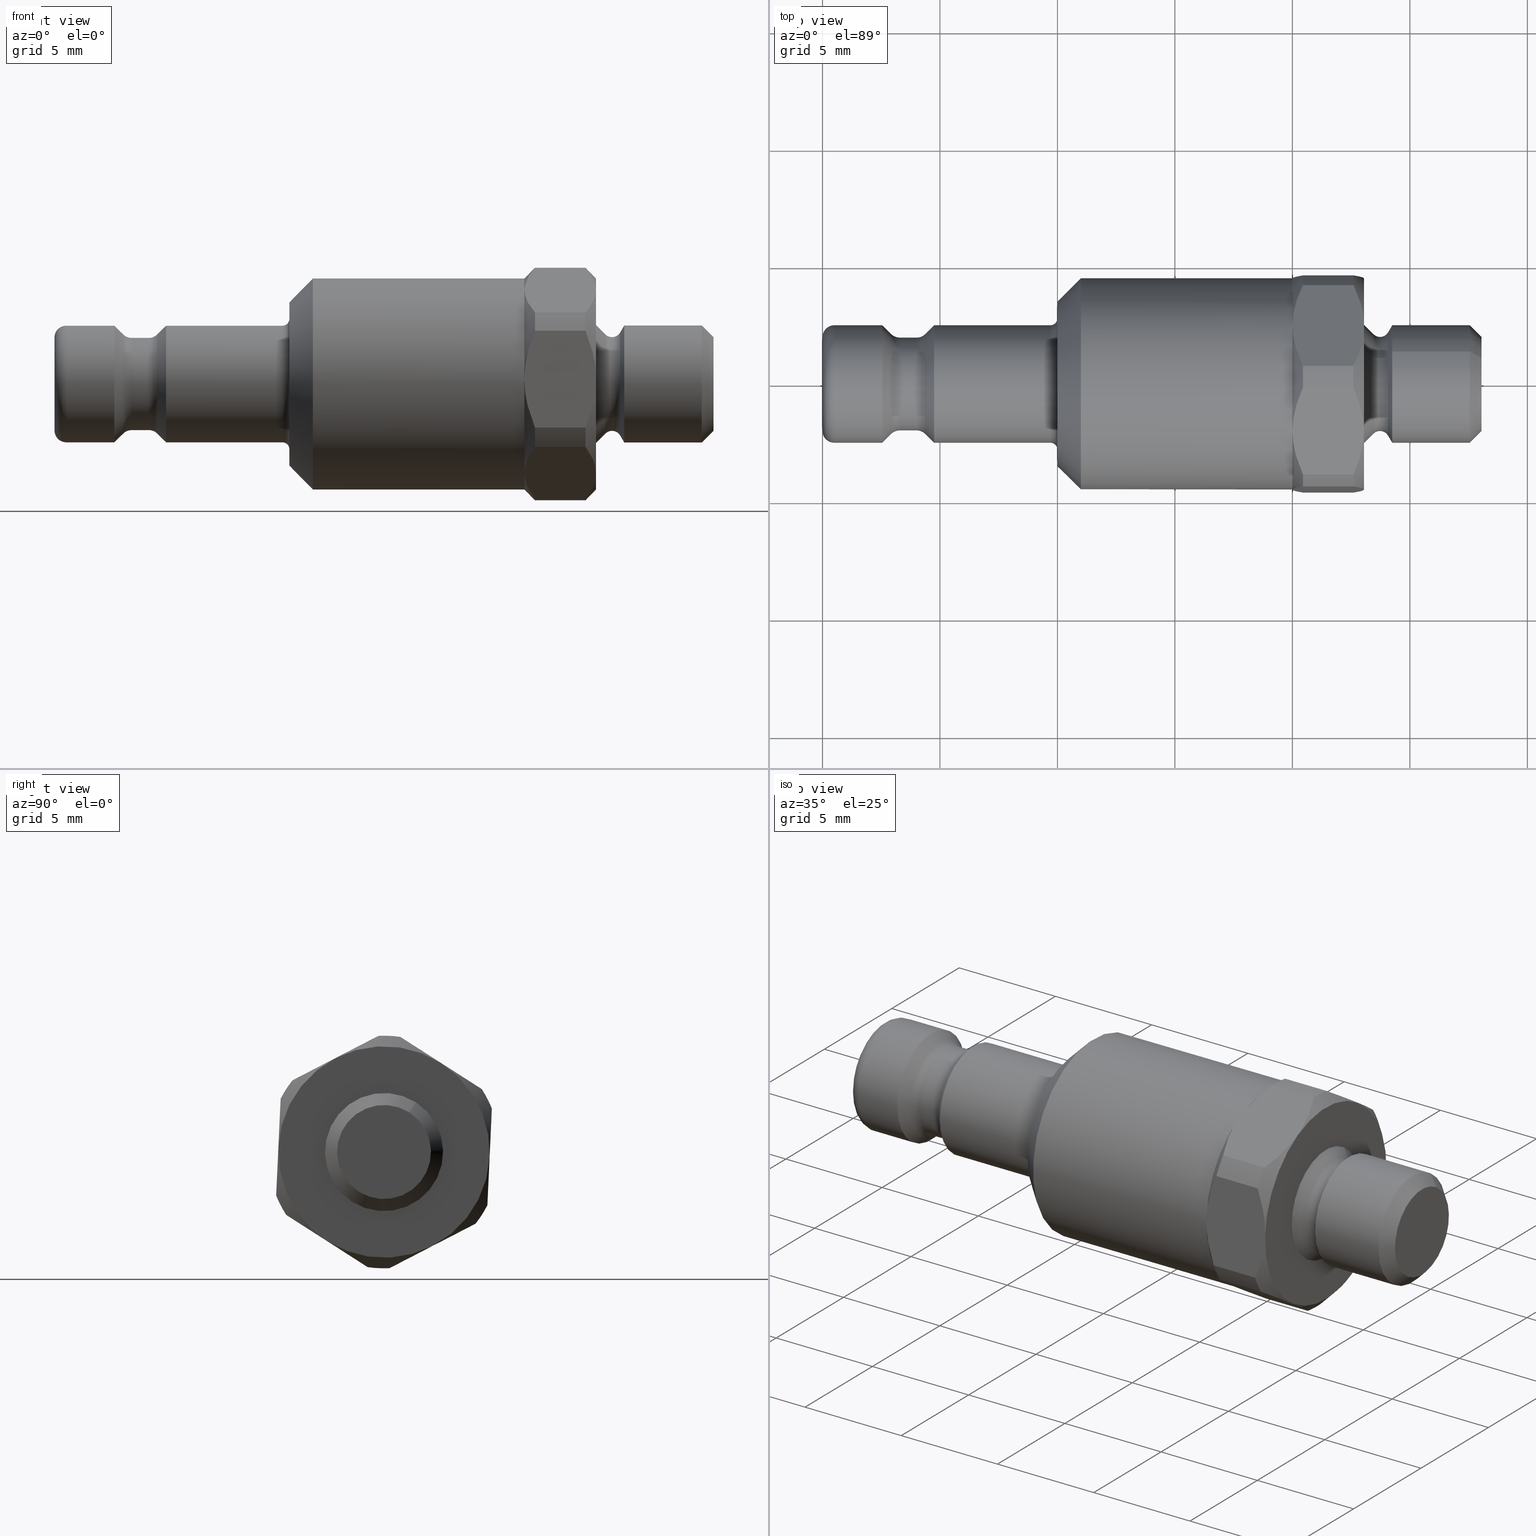
[diagram: canonical four-view strip — front | top / right | iso, engineering-drawing reading convention]
A machine part, canonical four-view strip (front | top / right | iso — engineering-drawing reading convention). The complete STEP part file that produces these views, byte-faithful:
ISO-10303-21;
HEADER;
/****************************************************************
 * Generated by software with PDElib inside                    *
 * PDElib Version v51a, created Wed 11/30/2011                  *
 * ITI Transcendata (http://www.transcendata.com/)              *
 ****************************************************************/
FILE_DESCRIPTION((''),'2;1');
FILE_NAME('J:\\3D Zeichnungen_step\\Serie 20\\20sbam05evx.stp','2014-03-20T12:39:20',('IA176480'),(''),'Autodesk Inventor 2013','Autodesk Inventor 2013','');
FILE_SCHEMA(('AUTOMOTIVE_DESIGN { 1 0 10303 214 1 1 1 1 }'));
ENDSEC;
DATA;
#5=APPLICATION_CONTEXT('automotive design');
#6=APPLICATION_PROTOCOL_DEFINITION('International Standard','automotive_design',2001,#5);
#7=PRODUCT_CONTEXT('',#5,'mechanical');
#8=PRODUCT('D109649','D109649',$,(#7));
#9=PRODUCT_RELATED_PRODUCT_CATEGORY('part',$,(#8));
#10=PRODUCT_DEFINITION_FORMATION('',$,#8);
#11=PRODUCT_DEFINITION_CONTEXT('part definition',#5,'design');
#12=PRODUCT_DEFINITION('',$,#10,#11);
#18=(NAMED_UNIT(*)PLANE_ANGLE_UNIT()SI_UNIT($,.RADIAN.));
#19=DIMENSIONAL_EXPONENTS(0.0,0.0,0.0,0.0,0.0,0.0,0.0);
#20=PLANE_ANGLE_MEASURE_WITH_UNIT(PLANE_ANGLE_MEASURE(0.0174532925),#18);
#24=(CONVERSION_BASED_UNIT('DEGREE',#20)NAMED_UNIT(#19)PLANE_ANGLE_UNIT());
#28=(NAMED_UNIT(*)SI_UNIT($,.STERADIAN.)SOLID_ANGLE_UNIT());
#32=(LENGTH_UNIT()NAMED_UNIT(*)SI_UNIT(.MILLI.,.METRE.));
#34=UNCERTAINTY_MEASURE_WITH_UNIT(LENGTH_MEASURE(0.01),#32,'DISTANCE_ACCURACY_VALUE','');
#36=(GEOMETRIC_REPRESENTATION_CONTEXT(3)GLOBAL_UNCERTAINTY_ASSIGNED_CONTEXT((#34))GLOBAL_UNIT_ASSIGNED_CONTEXT((#24,#28,#32))REPRESENTATION_CONTEXT('None','None'));
#37=AXIS2_PLACEMENT_3D('',#38,#39,#40);
#38=CARTESIAN_POINT('',(0.0,0.0,0.0));
#39=DIRECTION('',(0.0,0.0,1.0));
#40=DIRECTION('',(1.0,0.0,0.0));
#41=SHAPE_REPRESENTATION('',(#37),#36);
#42=PRODUCT_DEFINITION_SHAPE('','',#12);
#43=SHAPE_DEFINITION_REPRESENTATION(#42,#41);
#49=(NAMED_UNIT(*)PLANE_ANGLE_UNIT()SI_UNIT($,.RADIAN.));
#50=DIMENSIONAL_EXPONENTS(0.0,0.0,0.0,0.0,0.0,0.0,0.0);
#51=PLANE_ANGLE_MEASURE_WITH_UNIT(PLANE_ANGLE_MEASURE(0.0174532925),#49);
#55=(CONVERSION_BASED_UNIT('DEGREE',#51)NAMED_UNIT(#50)PLANE_ANGLE_UNIT());
#59=(NAMED_UNIT(*)SI_UNIT($,.STERADIAN.)SOLID_ANGLE_UNIT());
#63=(LENGTH_UNIT()NAMED_UNIT(*)SI_UNIT(.MILLI.,.METRE.));
#65=UNCERTAINTY_MEASURE_WITH_UNIT(LENGTH_MEASURE(0.000001),#63,'DISTANCE_ACCURACY_VALUE','');
#67=(GEOMETRIC_REPRESENTATION_CONTEXT(3)GLOBAL_UNCERTAINTY_ASSIGNED_CONTEXT((#65))GLOBAL_UNIT_ASSIGNED_CONTEXT((#55,#59,#63))REPRESENTATION_CONTEXT('','3D'));
#68=CARTESIAN_POINT('',(15.499999999999989,0.0,0.0));
#69=DIRECTION('',(1.0,0.0,0.0));
#70=DIRECTION('',(0.0,1.0,0.0));
#71=AXIS2_PLACEMENT_3D('',#68,#69,#70);
#72=CYLINDRICAL_SURFACE('',#71,4.500000000000001);
#73=CARTESIAN_POINT('',(20.0,4.495207189392,-0.207635075164289));
#74=VERTEX_POINT('',#73);
#75=CARTESIAN_POINT('',(20.0,2.427420844504965,3.789146083705774));
#76=VERTEX_POINT('',#75);
#77=CARTESIAN_POINT('',(20.0,0.0,0.0));
#78=DIRECTION('',(1.0,0.0,0.0));
#79=DIRECTION('',(0.0,1.0,0.0));
#80=AXIS2_PLACEMENT_3D('',#77,#78,#79);
#81=CIRCLE('',#80,4.5);
#82=EDGE_CURVE('',#74,#76,#81,.T.);
#83=ORIENTED_EDGE('',*,*,#82,.F.);
#84=CARTESIAN_POINT('',(20.0,2.067786344887035,-3.996781158870063));
#85=VERTEX_POINT('',#84);
#86=CARTESIAN_POINT('',(20.0,0.0,0.0));
#87=DIRECTION('',(1.0,0.0,0.0));
#88=DIRECTION('',(0.0,1.0,0.0));
#89=AXIS2_PLACEMENT_3D('',#86,#87,#88);
#90=CIRCLE('',#89,4.5);
#91=EDGE_CURVE('',#85,#74,#90,.T.);
#92=ORIENTED_EDGE('',*,*,#91,.F.);
#93=CARTESIAN_POINT('',(20.0,-2.427420844504966,-3.789146083705774));
#94=VERTEX_POINT('',#93);
#95=CARTESIAN_POINT('',(20.0,0.0,0.0));
#96=DIRECTION('',(1.0,0.0,0.0));
#97=DIRECTION('',(0.0,1.0,0.0));
#98=AXIS2_PLACEMENT_3D('',#95,#96,#97);
#99=CIRCLE('',#98,4.5);
#100=EDGE_CURVE('',#94,#85,#99,.T.);
#101=ORIENTED_EDGE('',*,*,#100,.F.);
#102=CARTESIAN_POINT('',(20.0,-4.495207189392,0.207635075164287));
#103=VERTEX_POINT('',#102);
#104=CARTESIAN_POINT('',(20.0,0.0,0.0));
#105=DIRECTION('',(1.0,0.0,0.0));
#106=DIRECTION('',(0.0,1.0,0.0));
#107=AXIS2_PLACEMENT_3D('',#104,#105,#106);
#108=CIRCLE('',#107,4.5);
#109=EDGE_CURVE('',#103,#94,#108,.T.);
#110=ORIENTED_EDGE('',*,*,#109,.F.);
#111=CARTESIAN_POINT('',(20.0,-2.067786344887038,3.996781158870061));
#112=VERTEX_POINT('',#111);
#113=CARTESIAN_POINT('',(20.0,0.0,0.0));
#114=DIRECTION('',(1.0,0.0,0.0));
#115=DIRECTION('',(0.0,1.0,0.0));
#116=AXIS2_PLACEMENT_3D('',#113,#114,#115);
#117=CIRCLE('',#116,4.5);
#118=EDGE_CURVE('',#112,#103,#117,.T.);
#119=ORIENTED_EDGE('',*,*,#118,.F.);
#120=CARTESIAN_POINT('',(20.0,0.0,0.0));
#121=DIRECTION('',(1.0,0.0,0.0));
#122=DIRECTION('',(0.0,1.0,0.0));
#123=AXIS2_PLACEMENT_3D('',#120,#121,#122);
#124=CIRCLE('',#123,4.5);
#125=EDGE_CURVE('',#76,#112,#124,.T.);
#126=ORIENTED_EDGE('',*,*,#125,.F.);
#127=EDGE_LOOP('',(#83,#92,#101,#110,#119,#126));
#128=FACE_OUTER_BOUND('',#127,.T.);
#129=CARTESIAN_POINT('',(10.999999999999979,4.500000000000002,0.0));
#130=VERTEX_POINT('',#129);
#131=CARTESIAN_POINT('',(10.999999999999979,0.0,0.0));
#132=DIRECTION('',(1.0,0.0,0.0));
#133=DIRECTION('',(0.0,1.0,0.0));
#134=AXIS2_PLACEMENT_3D('',#131,#132,#133);
#135=CIRCLE('',#134,4.500000000000002);
#136=EDGE_CURVE('',#130,#130,#135,.T.);
#137=ORIENTED_EDGE('',*,*,#136,.T.);
#138=EDGE_LOOP('',(#137));
#139=FACE_BOUND('',#138,.T.);
#140=ADVANCED_FACE('',(#128,#139),#72,.T.);
#141=CARTESIAN_POINT('',(10.499999999999989,0.0,0.0));
#142=DIRECTION('',(1.0,0.0,0.0));
#143=DIRECTION('',(0.0,1.0,0.0));
#144=AXIS2_PLACEMENT_3D('',#141,#142,#143);
#145=CONICAL_SURFACE('',#144,4.0,45.000000000000732);
#146=ORIENTED_EDGE('',*,*,#136,.F.);
#147=EDGE_LOOP('',(#146));
#148=FACE_OUTER_BOUND('',#147,.T.);
#149=CARTESIAN_POINT('',(10.0,3.499999999999997,0.0));
#150=VERTEX_POINT('',#149);
#151=CARTESIAN_POINT('',(10.0,0.0,0.0));
#152=DIRECTION('',(1.0,0.0,0.0));
#153=DIRECTION('',(0.0,1.0,0.0));
#154=AXIS2_PLACEMENT_3D('',#151,#152,#153);
#155=CIRCLE('',#154,3.499999999999997);
#156=EDGE_CURVE('',#150,#150,#155,.T.);
#157=ORIENTED_EDGE('',*,*,#156,.T.);
#158=EDGE_LOOP('',(#157));
#159=FACE_BOUND('',#158,.T.);
#160=ADVANCED_FACE('',(#148,#159),#145,.T.);
#161=CARTESIAN_POINT('',(10.0,3.149999999999999,0.0));
#162=DIRECTION('',(-1.0,0.0,0.0));
#163=DIRECTION('',(0.0,0.0,1.0));
#164=AXIS2_PLACEMENT_3D('',#161,#162,#163);
#165=PLANE('',#164);
#166=ORIENTED_EDGE('',*,*,#156,.F.);
#167=EDGE_LOOP('',(#166));
#168=FACE_OUTER_BOUND('',#167,.T.);
#169=CARTESIAN_POINT('',(10.0,2.8,0.0));
#170=VERTEX_POINT('',#169);
#171=CARTESIAN_POINT('',(10.0,0.0,0.0));
#172=DIRECTION('',(1.0,0.0,0.0));
#173=DIRECTION('',(0.0,1.0,0.0));
#174=AXIS2_PLACEMENT_3D('',#171,#172,#173);
#175=CIRCLE('',#174,2.8);
#176=EDGE_CURVE('',#170,#170,#175,.T.);
#177=ORIENTED_EDGE('',*,*,#176,.T.);
#178=EDGE_LOOP('',(#177));
#179=FACE_BOUND('',#178,.T.);
#180=ADVANCED_FACE('',(#168,#179),#165,.T.);
#181=CARTESIAN_POINT('',(9.699999999999998,0.0,0.0));
#182=DIRECTION('',(1.0,0.0,0.0));
#183=DIRECTION('',(0.0,0.0,-1.0));
#184=AXIS2_PLACEMENT_3D('',#181,#182,#183);
#185=TOROIDAL_SURFACE('',#184,2.800000000000002,0.300000000000002);
#186=ORIENTED_EDGE('',*,*,#176,.F.);
#187=EDGE_LOOP('',(#186));
#188=FACE_OUTER_BOUND('',#187,.T.);
#189=CARTESIAN_POINT('',(9.699999999999999,2.499999999999999,0.0));
#190=VERTEX_POINT('',#189);
#191=CARTESIAN_POINT('',(9.699999999999999,0.0,0.0));
#192=DIRECTION('',(1.0,0.0,0.0));
#193=DIRECTION('',(0.0,1.0,0.0));
#194=AXIS2_PLACEMENT_3D('',#191,#192,#193);
#195=CIRCLE('',#194,2.499999999999999);
#196=EDGE_CURVE('',#190,#190,#195,.T.);
#197=ORIENTED_EDGE('',*,*,#196,.T.);
#198=EDGE_LOOP('',(#197));
#199=FACE_BOUND('',#198,.T.);
#200=ADVANCED_FACE('',(#188,#199),#185,.F.);
#201=CARTESIAN_POINT('',(7.225,0.0,0.0));
#202=DIRECTION('',(1.0,0.0,0.0));
#203=DIRECTION('',(0.0,1.0,0.0));
#204=AXIS2_PLACEMENT_3D('',#201,#202,#203);
#205=CYLINDRICAL_SURFACE('',#204,2.499999999999999);
#206=ORIENTED_EDGE('',*,*,#196,.F.);
#207=EDGE_LOOP('',(#206));
#208=FACE_OUTER_BOUND('',#207,.T.);
#209=CARTESIAN_POINT('',(4.75,2.499999999999999,0.0));
#210=VERTEX_POINT('',#209);
#211=CARTESIAN_POINT('',(4.750000000000001,0.0,0.0));
#212=DIRECTION('',(1.0,0.0,0.0));
#213=DIRECTION('',(0.0,1.0,0.0));
#214=AXIS2_PLACEMENT_3D('',#211,#212,#213);
#215=CIRCLE('',#214,2.499999999999999);
#216=EDGE_CURVE('',#210,#210,#215,.T.);
#217=ORIENTED_EDGE('',*,*,#216,.T.);
#218=EDGE_LOOP('',(#217));
#219=FACE_BOUND('',#218,.T.);
#220=ADVANCED_FACE('',(#208,#219),#205,.T.);
#221=CARTESIAN_POINT('',(4.560723304703362,0.0,0.0));
#222=DIRECTION('',(1.0,0.0,0.0));
#223=DIRECTION('',(0.0,1.0,0.0));
#224=AXIS2_PLACEMENT_3D('',#221,#222,#223);
#225=CONICAL_SURFACE('',#224,2.310723304703362,45.000000000000071);
#226=ORIENTED_EDGE('',*,*,#216,.F.);
#227=EDGE_LOOP('',(#226));
#228=FACE_OUTER_BOUND('',#227,.T.);
#229=CARTESIAN_POINT('',(4.371446609406728,2.121446609406726,0.0));
#230=VERTEX_POINT('',#229);
#231=CARTESIAN_POINT('',(4.371446609406728,0.0,0.0));
#232=DIRECTION('',(1.0,0.0,0.0));
#233=DIRECTION('',(0.0,1.0,0.0));
#234=AXIS2_PLACEMENT_3D('',#231,#232,#233);
#235=CIRCLE('',#234,2.121446609406726);
#236=EDGE_CURVE('',#230,#230,#235,.T.);
#237=ORIENTED_EDGE('',*,*,#236,.T.);
#238=EDGE_LOOP('',(#237));
#239=FACE_BOUND('',#238,.T.);
#240=ADVANCED_FACE('',(#228,#239),#225,.T.);
#241=CARTESIAN_POINT('',(4.017893218813454,0.0,0.0));
#242=DIRECTION('',(1.0,0.0,0.0));
#243=DIRECTION('',(0.0,0.0,-1.0));
#244=AXIS2_PLACEMENT_3D('',#241,#242,#243);
#245=TOROIDAL_SURFACE('',#244,2.474999999999998,0.499999999999998);
#246=ORIENTED_EDGE('',*,*,#236,.F.);
#247=EDGE_LOOP('',(#246));
#248=FACE_OUTER_BOUND('',#247,.T.);
#249=CARTESIAN_POINT('',(4.017893218813454,1.975,0.0));
#250=VERTEX_POINT('',#249);
#251=CARTESIAN_POINT('',(4.017893218813454,0.0,0.0));
#252=DIRECTION('',(1.0,0.0,0.0));
#253=DIRECTION('',(0.0,1.0,0.0));
#254=AXIS2_PLACEMENT_3D('',#251,#252,#253);
#255=CIRCLE('',#254,1.975);
#256=EDGE_CURVE('',#250,#250,#255,.T.);
#257=ORIENTED_EDGE('',*,*,#256,.T.);
#258=EDGE_LOOP('',(#257));
#259=FACE_BOUND('',#258,.T.);
#260=ADVANCED_FACE('',(#248,#259),#245,.F.);
#261=CARTESIAN_POINT('',(3.65,0.0,0.0));
#262=DIRECTION('',(1.0,0.0,0.0));
#263=DIRECTION('',(0.0,1.0,0.0));
#264=AXIS2_PLACEMENT_3D('',#261,#262,#263);
#265=CYLINDRICAL_SURFACE('',#264,1.975);
#266=ORIENTED_EDGE('',*,*,#256,.F.);
#267=EDGE_LOOP('',(#266));
#268=FACE_OUTER_BOUND('',#267,.T.);
#269=CARTESIAN_POINT('',(3.282106781186547,1.975,0.0));
#270=VERTEX_POINT('',#269);
#271=CARTESIAN_POINT('',(3.282106781186547,0.0,0.0));
#272=DIRECTION('',(1.0,0.0,0.0));
#273=DIRECTION('',(0.0,1.0,0.0));
#274=AXIS2_PLACEMENT_3D('',#271,#272,#273);
#275=CIRCLE('',#274,1.975);
#276=EDGE_CURVE('',#270,#270,#275,.T.);
#277=ORIENTED_EDGE('',*,*,#276,.T.);
#278=EDGE_LOOP('',(#277));
#279=FACE_BOUND('',#278,.T.);
#280=ADVANCED_FACE('',(#268,#279),#265,.T.);
#281=CARTESIAN_POINT('',(3.282106781186546,0.0,0.0));
#282=DIRECTION('',(1.0,0.0,0.0));
#283=DIRECTION('',(0.0,0.0,-1.0));
#284=AXIS2_PLACEMENT_3D('',#281,#282,#283);
#285=TOROIDAL_SURFACE('',#284,2.474999999999997,0.499999999999998);
#286=ORIENTED_EDGE('',*,*,#276,.F.);
#287=EDGE_LOOP('',(#286));
#288=FACE_OUTER_BOUND('',#287,.T.);
#289=CARTESIAN_POINT('',(2.928553390593273,2.121446609406726,0.0));
#290=VERTEX_POINT('',#289);
#291=CARTESIAN_POINT('',(2.928553390593274,0.0,0.0));
#292=DIRECTION('',(1.0,0.0,0.0));
#293=DIRECTION('',(0.0,1.0,0.0));
#294=AXIS2_PLACEMENT_3D('',#291,#292,#293);
#295=CIRCLE('',#294,2.121446609406726);
#296=EDGE_CURVE('',#290,#290,#295,.T.);
#297=ORIENTED_EDGE('',*,*,#296,.T.);
#298=EDGE_LOOP('',(#297));
#299=FACE_BOUND('',#298,.T.);
#300=ADVANCED_FACE('',(#288,#299),#285,.F.);
#301=CARTESIAN_POINT('',(2.739276695296637,0.0,0.0));
#302=DIRECTION('',(-1.0,0.0,0.0));
#303=DIRECTION('',(0.0,1.0,0.0));
#304=AXIS2_PLACEMENT_3D('',#301,#302,#303);
#305=CONICAL_SURFACE('',#304,2.310723304703362,45.000000000000071);
#306=ORIENTED_EDGE('',*,*,#296,.F.);
#307=EDGE_LOOP('',(#306));
#308=FACE_OUTER_BOUND('',#307,.T.);
#309=CARTESIAN_POINT('',(2.549999999999999,2.5,0.0));
#310=VERTEX_POINT('',#309);
#311=CARTESIAN_POINT('',(2.549999999999999,0.0,0.0));
#312=DIRECTION('',(1.0,0.0,0.0));
#313=DIRECTION('',(0.0,1.0,0.0));
#314=AXIS2_PLACEMENT_3D('',#311,#312,#313);
#315=CIRCLE('',#314,2.5);
#316=EDGE_CURVE('',#310,#310,#315,.T.);
#317=ORIENTED_EDGE('',*,*,#316,.T.);
#318=EDGE_LOOP('',(#317));
#319=FACE_BOUND('',#318,.T.);
#320=ADVANCED_FACE('',(#308,#319),#305,.T.);
#321=CARTESIAN_POINT('',(1.524999999999999,0.0,0.0));
#322=DIRECTION('',(1.0,0.0,0.0));
#323=DIRECTION('',(0.0,1.0,0.0));
#324=AXIS2_PLACEMENT_3D('',#321,#322,#323);
#325=CYLINDRICAL_SURFACE('',#324,2.5);
#326=ORIENTED_EDGE('',*,*,#316,.F.);
#327=EDGE_LOOP('',(#326));
#328=FACE_OUTER_BOUND('',#327,.T.);
#329=CARTESIAN_POINT('',(0.5,2.5,0.0));
#330=VERTEX_POINT('',#329);
#331=CARTESIAN_POINT('',(0.5,0.0,0.0));
#332=DIRECTION('',(1.0,0.0,0.0));
#333=DIRECTION('',(0.0,1.0,0.0));
#334=AXIS2_PLACEMENT_3D('',#331,#332,#333);
#335=CIRCLE('',#334,2.5);
#336=EDGE_CURVE('',#330,#330,#335,.T.);
#337=ORIENTED_EDGE('',*,*,#336,.T.);
#338=EDGE_LOOP('',(#337));
#339=FACE_BOUND('',#338,.T.);
#340=ADVANCED_FACE('',(#328,#339),#325,.T.);
#341=CARTESIAN_POINT('',(0.5,0.0,0.0));
#342=DIRECTION('',(1.0,0.0,0.0));
#343=DIRECTION('',(0.0,0.0,-1.0));
#344=AXIS2_PLACEMENT_3D('',#341,#342,#343);
#345=TOROIDAL_SURFACE('',#344,2.0,0.499999999999999);
#346=ORIENTED_EDGE('',*,*,#336,.F.);
#347=EDGE_LOOP('',(#346));
#348=FACE_OUTER_BOUND('',#347,.T.);
#349=CARTESIAN_POINT('',(-2.775558E-016,2.0,0.0));
#350=VERTEX_POINT('',#349);
#351=CARTESIAN_POINT('',(0.0,0.0,0.0));
#352=DIRECTION('',(1.0,0.0,0.0));
#353=DIRECTION('',(0.0,1.0,0.0));
#354=AXIS2_PLACEMENT_3D('',#351,#352,#353);
#355=CIRCLE('',#354,2.0);
#356=EDGE_CURVE('',#350,#350,#355,.T.);
#357=ORIENTED_EDGE('',*,*,#356,.T.);
#358=EDGE_LOOP('',(#357));
#359=FACE_BOUND('',#358,.T.);
#360=ADVANCED_FACE('',(#348,#359),#345,.T.);
#361=CARTESIAN_POINT('',(-1.387779E-016,1.675,0.0));
#362=DIRECTION('',(-1.0,0.0,0.0));
#363=DIRECTION('',(0.0,0.0,1.0));
#364=AXIS2_PLACEMENT_3D('',#361,#362,#363);
#365=PLANE('',#364);
#366=ORIENTED_EDGE('',*,*,#356,.F.);
#367=EDGE_LOOP('',(#366));
#368=FACE_OUTER_BOUND('',#367,.T.);
#369=ADVANCED_FACE('',(#368),#365,.T.);
#370=CARTESIAN_POINT('',(21.525000000000002,-4.310463E-016,-2.998288E-031));
#371=DIRECTION('',(-1.0,-6.606074E-017,8.628166E-032));
#372=DIRECTION('',(-3.563494E-017,0.539426854334437,0.842032463045727));
#373=AXIS2_PLACEMENT_3D('',#370,#371,#372);
#374=CYLINDRICAL_SURFACE('',#373,4.950000000000002);
#375=CARTESIAN_POINT('',(22.600000000000001,-3.899341564556578,3.049202414225968));
#376=VERTEX_POINT('',#375);
#377=CARTESIAN_POINT('',(20.450000000000003,-3.899341564556578,3.049202414225968));
#378=VERTEX_POINT('',#377);
#379=CARTESIAN_POINT('',(22.600000000000001,-3.899341564556578,3.049202414225968));
#380=DIRECTION('',(-1.0,0.0,0.0));
#381=VECTOR('',#380,2.149999999999999);
#382=LINE('',#379,#381);
#383=EDGE_CURVE('',#376,#378,#382,.T.);
#384=ORIENTED_EDGE('',*,*,#383,.T.);
#385=CARTESIAN_POINT('',(20.450000000000003,-4.40005684450518,2.267597796154143));
#386=VERTEX_POINT('',#385);
#387=CARTESIAN_POINT('',(20.450000000000003,-5.020616E-016,-2.070760E-031));
#388=DIRECTION('',(-1.0,-1.922244E-017,-3.000577E-017));
#389=DIRECTION('',(-3.563494E-017,0.539426854334437,0.842032463045727));
#390=AXIS2_PLACEMENT_3D('',#387,#388,#389);
#391=CIRCLE('',#390,4.950000000000002);
#392=EDGE_CURVE('',#386,#378,#391,.T.);
#393=ORIENTED_EDGE('',*,*,#392,.F.);
#394=CARTESIAN_POINT('',(22.600000000000001,-4.40005684450518,2.267597796154143));
#395=VERTEX_POINT('',#394);
#396=CARTESIAN_POINT('',(20.450000000000003,-4.400056844505182,2.267597796154142));
#397=DIRECTION('',(1.0,0.0,0.0));
#398=VECTOR('',#397,2.149999999999999);
#399=LINE('',#396,#398);
#400=EDGE_CURVE('',#386,#395,#399,.T.);
#401=ORIENTED_EDGE('',*,*,#400,.T.);
#402=CARTESIAN_POINT('',(22.600000000000001,-3.600310E-016,-3.925816E-031));
#403=DIRECTION('',(-1.0,-1.922244E-017,-3.000577E-017));
#404=DIRECTION('',(-3.563494E-017,0.539426854334437,0.842032463045727));
#405=AXIS2_PLACEMENT_3D('',#402,#403,#404);
#406=CIRCLE('',#405,4.950000000000001);
#407=EDGE_CURVE('',#395,#376,#406,.T.);
#408=ORIENTED_EDGE('',*,*,#407,.T.);
#409=EDGE_LOOP('',(#384,#393,#401,#408));
#410=FACE_OUTER_BOUND('',#409,.T.);
#411=ADVANCED_FACE('',(#410),#374,.T.);
#412=CARTESIAN_POINT('',(22.825000000000003,-3.451674E-016,-4.119949E-031));
#413=DIRECTION('',(-1.0,-6.606074E-017,8.628166E-032));
#414=DIRECTION('',(-3.563494E-017,0.539426854334437,0.842032463045727));
#415=AXIS2_PLACEMENT_3D('',#412,#413,#414);
#416=CONICAL_SURFACE('',#415,4.725000000000001,45.000000000000078);
#417=CARTESIAN_POINT('',(23.050000000000001,-2.067786344887038,3.996781158870061));
#418=VERTEX_POINT('',#417);
#419=CARTESIAN_POINT('',(23.050000000000001,-2.067786344887038,3.996781158870062));
#420=CARTESIAN_POINT('',(23.050000000000001,-2.939955497110626,3.545553185230019));
#421=CARTESIAN_POINT('',(22.600000000000001,-3.899341564556575,3.049202414225971));
#429=(BOUNDED_CURVE()B_SPLINE_CURVE(2,(#419,#420,#421),.UNSPECIFIED.,.F.,.U.)B_SPLINE_CURVE_WITH_KNOTS((3,3),(0.212132062836384,0.424264125672768),.UNSPECIFIED.)CURVE()GEOMETRIC_REPRESENTATION_ITEM()RATIONAL_B_SPLINE_CURVE((1.0,1.024695076595967,1.0))REPRESENTATION_ITEM(''));
#430=EDGE_CURVE('',#418,#376,#429,.T.);
#431=ORIENTED_EDGE('',*,*,#430,.T.);
#432=ORIENTED_EDGE('',*,*,#407,.F.);
#433=CARTESIAN_POINT('',(23.050000000000001,-4.495207189392,0.207635075164287));
#434=VERTEX_POINT('',#433);
#435=CARTESIAN_POINT('',(22.600000000000001,-4.400056844505181,2.267597796154142));
#436=CARTESIAN_POINT('',(23.050000000000001,-4.449897501350658,1.188569704207075));
#437=CARTESIAN_POINT('',(23.050000000000001,-4.495207189392,0.207635075164287));
#445=(BOUNDED_CURVE()B_SPLINE_CURVE(2,(#435,#436,#437),.UNSPECIFIED.,.F.,.U.)B_SPLINE_CURVE_WITH_KNOTS((3,3),(0.0,0.212132062836384),.UNSPECIFIED.)CURVE()GEOMETRIC_REPRESENTATION_ITEM()RATIONAL_B_SPLINE_CURVE((1.0,1.02469507659596,1.0))REPRESENTATION_ITEM(''));
#446=EDGE_CURVE('',#395,#434,#445,.T.);
#447=ORIENTED_EDGE('',*,*,#446,.T.);
#448=CARTESIAN_POINT('',(23.050000000000001,-3.303037E-016,-4.314083E-031));
#449=DIRECTION('',(-1.0,-1.922244E-017,-3.000577E-017));
#450=DIRECTION('',(-3.563494E-017,0.539426854334437,0.842032463045727));
#451=AXIS2_PLACEMENT_3D('',#448,#449,#450);
#452=CIRCLE('',#451,4.5);
#453=EDGE_CURVE('',#434,#418,#452,.T.);
#454=ORIENTED_EDGE('',*,*,#453,.T.);
#455=EDGE_LOOP('',(#431,#432,#447,#454));
#456=FACE_OUTER_BOUND('',#455,.T.);
#457=ADVANCED_FACE('',(#456),#416,.T.);
#458=CARTESIAN_POINT('',(23.050000000000001,1.891958597591721,2.953302278353024));
#459=DIRECTION('',(1.0,0.0,0.0));
#460=DIRECTION('',(0.0,-0.539426854334437,-0.842032463045727));
#461=AXIS2_PLACEMENT_3D('',#458,#459,#460);
#462=PLANE('',#461);
#463=CARTESIAN_POINT('',(23.050000000000001,2.427420844504966,3.789146083705774));
#464=VERTEX_POINT('',#463);
#465=CARTESIAN_POINT('',(23.050000000000001,4.495207189392,-0.207635075164289));
#466=VERTEX_POINT('',#465);
#467=CARTESIAN_POINT('',(23.050000000000001,-3.303037E-016,-4.314083E-031));
#468=DIRECTION('',(-1.0,-1.922244E-017,-3.000577E-017));
#469=DIRECTION('',(-3.563494E-017,0.539426854334437,0.842032463045727));
#470=AXIS2_PLACEMENT_3D('',#467,#468,#469);
#471=CIRCLE('',#470,4.5);
#472=EDGE_CURVE('',#464,#466,#471,.T.);
#473=ORIENTED_EDGE('',*,*,#472,.F.);
#474=CARTESIAN_POINT('',(23.050000000000001,-3.303037E-016,-4.314083E-031));
#475=DIRECTION('',(-1.0,-1.922244E-017,-3.000577E-017));
#476=DIRECTION('',(-3.563494E-017,0.539426854334437,0.842032463045727));
#477=AXIS2_PLACEMENT_3D('',#474,#475,#476);
#478=CIRCLE('',#477,4.5);
#479=EDGE_CURVE('',#418,#464,#478,.T.);
#480=ORIENTED_EDGE('',*,*,#479,.F.);
#481=ORIENTED_EDGE('',*,*,#453,.F.);
#482=CARTESIAN_POINT('',(23.050000000000001,-2.427420844504966,-3.789146083705774));
#483=VERTEX_POINT('',#482);
#484=CARTESIAN_POINT('',(23.050000000000001,-3.303037E-016,-4.314083E-031));
#485=DIRECTION('',(-1.0,-1.922244E-017,-3.000577E-017));
#486=DIRECTION('',(-3.563494E-017,0.539426854334437,0.842032463045727));
#487=AXIS2_PLACEMENT_3D('',#484,#485,#486);
#488=CIRCLE('',#487,4.5);
#489=EDGE_CURVE('',#483,#434,#488,.T.);
#490=ORIENTED_EDGE('',*,*,#489,.F.);
#491=CARTESIAN_POINT('',(23.050000000000001,2.067786344887035,-3.996781158870063));
#492=VERTEX_POINT('',#491);
#493=CARTESIAN_POINT('',(23.050000000000001,-3.303037E-016,-4.314083E-031));
#494=DIRECTION('',(-1.0,-1.922244E-017,-3.000577E-017));
#495=DIRECTION('',(-3.563494E-017,0.539426854334437,0.842032463045727));
#496=AXIS2_PLACEMENT_3D('',#493,#494,#495);
#497=CIRCLE('',#496,4.5);
#498=EDGE_CURVE('',#492,#483,#497,.T.);
#499=ORIENTED_EDGE('',*,*,#498,.F.);
#500=CARTESIAN_POINT('',(23.050000000000001,-3.303037E-016,-4.314083E-031));
#501=DIRECTION('',(-1.0,-1.922244E-017,-3.000577E-017));
#502=DIRECTION('',(-3.563494E-017,0.539426854334437,0.842032463045727));
#503=AXIS2_PLACEMENT_3D('',#500,#501,#502);
#504=CIRCLE('',#503,4.5);
#505=EDGE_CURVE('',#466,#492,#504,.T.);
#506=ORIENTED_EDGE('',*,*,#505,.F.);
#507=EDGE_LOOP('',(#473,#480,#481,#490,#499,#506));
#508=FACE_OUTER_BOUND('',#507,.T.);
#509=CARTESIAN_POINT('',(23.050000000000001,1.356496350678476,2.117458473000275));
#510=VERTEX_POINT('',#509);
#511=CARTESIAN_POINT('',(23.050000000000001,-3.303037E-016,-4.314083E-031));
#512=DIRECTION('',(-1.0,-1.922244E-017,-3.000577E-017));
#513=DIRECTION('',(-3.563494E-017,0.539426854334437,0.842032463045728));
#514=AXIS2_PLACEMENT_3D('',#511,#512,#513);
#515=CIRCLE('',#514,2.514699332780099);
#516=EDGE_CURVE('',#510,#510,#515,.T.);
#517=ORIENTED_EDGE('',*,*,#516,.T.);
#518=EDGE_LOOP('',(#517));
#519=FACE_BOUND('',#518,.T.);
#520=ADVANCED_FACE('',(#508,#519),#462,.T.);
#521=CARTESIAN_POINT('',(23.248771022627359,-3.171727E-016,-4.485586E-031));
#522=DIRECTION('',(-1.0,-6.606074E-017,8.628166E-032));
#523=DIRECTION('',(-3.563494E-017,0.539426854334437,0.842032463045727));
#524=AXIS2_PLACEMENT_3D('',#521,#522,#523);
#525=CONICAL_SURFACE('',#524,2.31592831015274,45.000000000000085);
#526=ORIENTED_EDGE('',*,*,#516,.F.);
#527=EDGE_LOOP('',(#526));
#528=FACE_OUTER_BOUND('',#527,.T.);
#529=CARTESIAN_POINT('',(23.447542045254718,1.142051495741045,1.782715165470208));
#530=VERTEX_POINT('',#529);
#531=CARTESIAN_POINT('',(23.447542045254721,-3.040418E-016,-4.657089E-031));
#532=DIRECTION('',(-1.0,-1.922244E-017,-3.000577E-017));
#533=DIRECTION('',(-3.563494E-017,0.539426854334437,0.842032463045727));
#534=AXIS2_PLACEMENT_3D('',#531,#532,#533);
#535=CIRCLE('',#534,2.117157287525381);
#536=EDGE_CURVE('',#530,#530,#535,.T.);
#537=ORIENTED_EDGE('',*,*,#536,.T.);
#538=EDGE_LOOP('',(#537));
#539=FACE_BOUND('',#538,.T.);
#540=ADVANCED_FACE('',(#528,#539),#525,.T.);
#541=CARTESIAN_POINT('',(23.730384757729336,-2.853570E-016,-4.901130E-031));
#542=DIRECTION('',(-1.0,-6.606074E-017,8.628166E-032));
#543=DIRECTION('',(-3.563494E-017,0.539426854334437,0.842032463045727));
#544=AXIS2_PLACEMENT_3D('',#541,#542,#543);
#545=TOROIDAL_SURFACE('',#544,2.4,0.4);
#546=ORIENTED_EDGE('',*,*,#536,.F.);
#547=EDGE_LOOP('',(#546));
#548=FACE_OUTER_BOUND('',#547,.T.);
#549=CARTESIAN_POINT('',(24.076794919243113,1.186739079535761,1.8524714187006));
#550=VERTEX_POINT('',#549);
#551=CARTESIAN_POINT('',(24.076794919243113,-2.624729E-016,-5.200019E-031));
#552=DIRECTION('',(-1.0,-1.922244E-017,-3.000577E-017));
#553=DIRECTION('',(-3.563494E-017,0.539426854334437,0.842032463045727));
#554=AXIS2_PLACEMENT_3D('',#551,#552,#553);
#555=CIRCLE('',#554,2.199999999999999);
#556=EDGE_CURVE('',#550,#550,#555,.T.);
#557=ORIENTED_EDGE('',*,*,#556,.T.);
#558=EDGE_LOOP('',(#557));
#559=FACE_BOUND('',#558,.T.);
#560=ADVANCED_FACE('',(#548,#559),#545,.F.);
#561=CARTESIAN_POINT('',(24.163397459621557,-2.567518E-016,-5.274741E-031));
#562=DIRECTION('',(1.0,6.606074E-017,-8.628166E-032));
#563=DIRECTION('',(-3.563494E-017,0.539426854334437,0.842032463045727));
#564=AXIS2_PLACEMENT_3D('',#561,#562,#563);
#565=CONICAL_SURFACE('',#564,2.35,59.999999999999908);
#566=ORIENTED_EDGE('',*,*,#556,.F.);
#567=EDGE_LOOP('',(#566));
#568=FACE_OUTER_BOUND('',#567,.T.);
#569=CARTESIAN_POINT('',(24.250000000000004,1.348567135836092,2.105081157614319));
#570=VERTEX_POINT('',#569);
#571=CARTESIAN_POINT('',(24.250000000000004,-2.510308E-016,-5.349463E-031));
#572=DIRECTION('',(-1.0,-1.922244E-017,-3.000577E-017));
#573=DIRECTION('',(-3.563494E-017,0.539426854334437,0.842032463045727));
#574=AXIS2_PLACEMENT_3D('',#571,#572,#573);
#575=CIRCLE('',#574,2.5);
#576=EDGE_CURVE('',#570,#570,#575,.T.);
#577=ORIENTED_EDGE('',*,*,#576,.T.);
#578=EDGE_LOOP('',(#577));
#579=FACE_BOUND('',#578,.T.);
#580=ADVANCED_FACE('',(#568,#579),#565,.T.);
#581=CARTESIAN_POINT('',(26.150000000000002,-1.255154E-016,-6.988815E-031));
#582=DIRECTION('',(-1.0,-6.606074E-017,8.628166E-032));
#583=DIRECTION('',(-3.563494E-017,0.539426854334437,0.842032463045727));
#584=AXIS2_PLACEMENT_3D('',#581,#582,#583);
#585=CYLINDRICAL_SURFACE('',#584,2.5);
#586=ORIENTED_EDGE('',*,*,#576,.F.);
#587=EDGE_LOOP('',(#586));
#588=FACE_OUTER_BOUND('',#587,.T.);
#589=CARTESIAN_POINT('',(27.550000000000004,1.348567135836092,2.105081157614319));
#590=VERTEX_POINT('',#589);
#591=CARTESIAN_POINT('',(27.550000000000004,-3.303037E-017,-8.196758E-031));
#592=DIRECTION('',(1.0,1.922244E-017,3.000577E-017));
#593=DIRECTION('',(3.563494E-017,-0.539426854334437,-0.842032463045727));
#594=AXIS2_PLACEMENT_3D('',#591,#592,#593);
#595=CIRCLE('',#594,2.5);
#596=EDGE_CURVE('',#590,#590,#595,.T.);
#597=ORIENTED_EDGE('',*,*,#596,.F.);
#598=EDGE_LOOP('',(#597));
#599=FACE_BOUND('',#598,.T.);
#600=ADVANCED_FACE('',(#588,#599),#585,.T.);
#601=CARTESIAN_POINT('',(28.050000000000001,1.011425351877069,1.578810868210739));
#602=DIRECTION('',(1.0,0.0,0.0));
#603=DIRECTION('',(0.0,-0.539426854334437,-0.842032463045727));
#604=AXIS2_PLACEMENT_3D('',#601,#602,#603);
#605=PLANE('',#604);
#606=CARTESIAN_POINT('',(28.050000000000001,1.078853708668874,1.684064926091455));
#607=VERTEX_POINT('',#606);
#608=CARTESIAN_POINT('',(28.050000000000001,-4.960161E-031,-8.628166E-031));
#609=DIRECTION('',(-1.0,-1.922244E-017,-3.000577E-017));
#610=DIRECTION('',(3.563494E-017,-0.539426854334437,-0.842032463045727));
#611=AXIS2_PLACEMENT_3D('',#608,#609,#610);
#612=CIRCLE('',#611,2.0);
#613=EDGE_CURVE('',#607,#607,#612,.T.);
#614=ORIENTED_EDGE('',*,*,#613,.F.);
#615=EDGE_LOOP('',(#614));
#616=FACE_OUTER_BOUND('',#615,.T.);
#617=ADVANCED_FACE('',(#616),#605,.T.);
#618=CARTESIAN_POINT('',(27.800000000000004,-1.651518E-017,-8.412462E-031));
#619=DIRECTION('',(-1.0,-6.606074E-017,8.628166E-032));
#620=DIRECTION('',(3.563494E-017,-0.539426854334437,-0.842032463045727));
#621=AXIS2_PLACEMENT_3D('',#618,#619,#620);
#622=CONICAL_SURFACE('',#621,2.25,45.000000000000014);
#623=ORIENTED_EDGE('',*,*,#613,.T.);
#624=EDGE_LOOP('',(#623));
#625=FACE_OUTER_BOUND('',#624,.T.);
#626=ORIENTED_EDGE('',*,*,#596,.T.);
#627=EDGE_LOOP('',(#626));
#628=FACE_BOUND('',#627,.T.);
#629=ADVANCED_FACE('',(#625,#628),#622,.T.);
#630=CARTESIAN_POINT('',(20.225000000000005,-5.169253E-016,-1.876626E-031));
#631=DIRECTION('',(1.0,6.606074E-017,-8.628166E-032));
#632=DIRECTION('',(-3.563494E-017,0.539426854334437,0.842032463045727));
#633=AXIS2_PLACEMENT_3D('',#630,#631,#632);
#634=CONICAL_SURFACE('',#633,4.725000000000001,44.999999999999964);
#635=CARTESIAN_POINT('',(20.450000000000003,-3.899341564556573,3.049202414225972));
#636=CARTESIAN_POINT('',(20.000000000000004,-2.939955497110623,3.54555318523002));
#637=CARTESIAN_POINT('',(20.000000000000004,-2.067786344887038,3.996781158870061));
#645=(BOUNDED_CURVE()B_SPLINE_CURVE(2,(#635,#636,#637),.UNSPECIFIED.,.F.,.U.)B_SPLINE_CURVE_WITH_KNOTS((3,3),(0.0,0.212132062836384),.UNSPECIFIED.)CURVE()GEOMETRIC_REPRESENTATION_ITEM()RATIONAL_B_SPLINE_CURVE((1.0,1.024695076595979,1.0))REPRESENTATION_ITEM(''));
#646=EDGE_CURVE('',#378,#112,#645,.T.);
#647=ORIENTED_EDGE('',*,*,#646,.T.);
#648=ORIENTED_EDGE('',*,*,#118,.T.);
#649=CARTESIAN_POINT('',(20.000000000000004,-4.495207189392,0.207635075164287));
#650=CARTESIAN_POINT('',(20.000000000000004,-4.449897501350658,1.188569704207072));
#651=CARTESIAN_POINT('',(20.450000000000003,-4.400056844505182,2.267597796154138));
#659=(BOUNDED_CURVE()B_SPLINE_CURVE(2,(#649,#650,#651),.UNSPECIFIED.,.F.,.U.)B_SPLINE_CURVE_WITH_KNOTS((3,3),(0.212132062836384,0.424264125672768),.UNSPECIFIED.)CURVE()GEOMETRIC_REPRESENTATION_ITEM()RATIONAL_B_SPLINE_CURVE((1.0,1.024695076595957,1.0))REPRESENTATION_ITEM(''));
#660=EDGE_CURVE('',#103,#386,#659,.T.);
#661=ORIENTED_EDGE('',*,*,#660,.T.);
#662=ORIENTED_EDGE('',*,*,#392,.T.);
#663=EDGE_LOOP('',(#647,#648,#661,#662));
#664=FACE_OUTER_BOUND('',#663,.T.);
#665=ADVANCED_FACE('',(#664),#634,.T.);
#666=CARTESIAN_POINT('',(19.031643322095782,2.427420844504965,3.789146083705774));
#667=DIRECTION('',(-7.637047E-017,-0.539426854334437,-0.842032463045727));
#668=DIRECTION('',(-1.0,0.0,0.0));
#669=AXIS2_PLACEMENT_3D('',#666,#667,#668);
#670=PLANE('',#669);
#671=CARTESIAN_POINT('',(22.600000000000001,4.163825719287686,2.676762107360009));
#672=VERTEX_POINT('',#671);
#673=CARTESIAN_POINT('',(22.600000000000001,4.163825719287686,2.676762107360009));
#674=CARTESIAN_POINT('',(23.050000000000001,3.254280308687215,3.259439428303027));
#675=CARTESIAN_POINT('',(23.050000000000001,2.427420844504965,3.789146083705774));
#683=(BOUNDED_CURVE()B_SPLINE_CURVE(2,(#673,#674,#675),.UNSPECIFIED.,.F.,.U.)B_SPLINE_CURVE_WITH_KNOTS((3,3),(0.0,0.212132062836384),.UNSPECIFIED.)CURVE()GEOMETRIC_REPRESENTATION_ITEM()RATIONAL_B_SPLINE_CURVE((1.0,1.024695076595967,1.0))REPRESENTATION_ITEM(''));
#684=EDGE_CURVE('',#672,#464,#683,.T.);
#685=ORIENTED_EDGE('',*,*,#684,.F.);
#686=CARTESIAN_POINT('',(20.450000000000003,4.163825719287686,2.676762107360008));
#687=VERTEX_POINT('',#686);
#688=CARTESIAN_POINT('',(20.450000000000003,4.163825719287686,2.676762107360008));
#689=DIRECTION('',(1.0,0.0,0.0));
#690=VECTOR('',#689,2.149999999999999);
#691=LINE('',#688,#690);
#692=EDGE_CURVE('',#687,#672,#691,.T.);
#693=ORIENTED_EDGE('',*,*,#692,.F.);
#694=CARTESIAN_POINT('',(20.0,2.427420844504965,3.789146083705774));
#695=CARTESIAN_POINT('',(20.0,3.254280308687205,3.259439428303033));
#696=CARTESIAN_POINT('',(20.450000000000003,4.163825719287683,2.676762107360011));
#704=(BOUNDED_CURVE()B_SPLINE_CURVE(2,(#694,#695,#696),.UNSPECIFIED.,.F.,.U.)B_SPLINE_CURVE_WITH_KNOTS((3,3),(0.212132062836384,0.424264125672768),.UNSPECIFIED.)CURVE()GEOMETRIC_REPRESENTATION_ITEM()RATIONAL_B_SPLINE_CURVE((1.0,1.024695076595967,1.0))REPRESENTATION_ITEM(''));
#705=EDGE_CURVE('',#76,#687,#704,.T.);
#706=ORIENTED_EDGE('',*,*,#705,.F.);
#707=CARTESIAN_POINT('',(20.450000000000003,0.691015969722244,4.901530060051539));
#708=VERTEX_POINT('',#707);
#709=CARTESIAN_POINT('',(20.450000000000003,0.691015969722248,4.901530060051536));
#710=CARTESIAN_POINT('',(20.0,1.600561380322725,4.318852739108514));
#711=CARTESIAN_POINT('',(20.0,2.427420844504965,3.789146083705774));
#719=(BOUNDED_CURVE()B_SPLINE_CURVE(2,(#709,#710,#711),.UNSPECIFIED.,.F.,.U.)B_SPLINE_CURVE_WITH_KNOTS((3,3),(0.0,0.212132062836384),.UNSPECIFIED.)CURVE()GEOMETRIC_REPRESENTATION_ITEM()RATIONAL_B_SPLINE_CURVE((1.0,1.024695076595967,1.0))REPRESENTATION_ITEM(''));
#720=EDGE_CURVE('',#708,#76,#719,.T.);
#721=ORIENTED_EDGE('',*,*,#720,.F.);
#722=CARTESIAN_POINT('',(22.600000000000001,0.691015969722245,4.901530060051538));
#723=VERTEX_POINT('',#722);
#724=CARTESIAN_POINT('',(22.600000000000001,0.691015969722244,4.901530060051539));
#725=DIRECTION('',(-1.0,0.0,0.0));
#726=VECTOR('',#725,2.149999999999999);
#727=LINE('',#724,#726);
#728=EDGE_CURVE('',#723,#708,#727,.T.);
#729=ORIENTED_EDGE('',*,*,#728,.F.);
#730=CARTESIAN_POINT('',(23.050000000000001,2.427420844504965,3.789146083705774));
#731=CARTESIAN_POINT('',(23.050000000000001,1.600561380322716,4.31885273910852));
#732=CARTESIAN_POINT('',(22.600000000000001,0.691015969722245,4.901530060051538));
#740=(BOUNDED_CURVE()B_SPLINE_CURVE(2,(#730,#731,#732),.UNSPECIFIED.,.F.,.U.)B_SPLINE_CURVE_WITH_KNOTS((3,3),(0.212132062836384,0.424264125672769),.UNSPECIFIED.)CURVE()GEOMETRIC_REPRESENTATION_ITEM()RATIONAL_B_SPLINE_CURVE((1.0,1.024695076595967,1.0))REPRESENTATION_ITEM(''));
#741=EDGE_CURVE('',#464,#723,#740,.T.);
#742=ORIENTED_EDGE('',*,*,#741,.F.);
#743=EDGE_LOOP('',(#685,#693,#706,#721,#729,#742));
#744=FACE_OUTER_BOUND('',#743,.T.);
#745=ADVANCED_FACE('',(#744),#670,.F.);
#746=CARTESIAN_POINT('',(22.825000000000003,-3.451674E-016,-4.119949E-031));
#747=DIRECTION('',(-1.0,-6.606074E-017,8.628166E-032));
#748=DIRECTION('',(-3.563494E-017,0.539426854334437,0.842032463045727));
#749=AXIS2_PLACEMENT_3D('',#746,#747,#748);
#750=CONICAL_SURFACE('',#749,4.725000000000001,45.000000000000078);
#751=CARTESIAN_POINT('',(22.600000000000001,-4.590357534278819,-1.852327645825568));
#752=VERTEX_POINT('',#751);
#753=CARTESIAN_POINT('',(23.050000000000001,-4.495207189392,0.207635075164287));
#754=CARTESIAN_POINT('',(23.050000000000001,-4.540516877433342,-0.773299553878501));
#755=CARTESIAN_POINT('',(22.600000000000001,-4.590357534278819,-1.852327645825568));
#763=(BOUNDED_CURVE()B_SPLINE_CURVE(2,(#753,#754,#755),.UNSPECIFIED.,.F.,.U.)B_SPLINE_CURVE_WITH_KNOTS((3,3),(0.212132062836384,0.424264125672768),.UNSPECIFIED.)CURVE()GEOMETRIC_REPRESENTATION_ITEM()RATIONAL_B_SPLINE_CURVE((1.0,1.024695076595962,1.0))REPRESENTATION_ITEM(''));
#764=EDGE_CURVE('',#434,#752,#763,.T.);
#765=ORIENTED_EDGE('',*,*,#764,.T.);
#766=CARTESIAN_POINT('',(22.600000000000001,-4.163825719287686,-2.676762107360009));
#767=VERTEX_POINT('',#766);
#768=CARTESIAN_POINT('',(22.600000000000001,-3.600310E-016,-3.925816E-031));
#769=DIRECTION('',(-1.0,-1.922244E-017,-3.000577E-017));
#770=DIRECTION('',(-3.563494E-017,0.539426854334437,0.842032463045727));
#771=AXIS2_PLACEMENT_3D('',#768,#769,#770);
#772=CIRCLE('',#771,4.950000000000001);
#773=EDGE_CURVE('',#767,#752,#772,.T.);
#774=ORIENTED_EDGE('',*,*,#773,.F.);
#775=CARTESIAN_POINT('',(22.600000000000001,-4.163825719287683,-2.676762107360013));
#776=CARTESIAN_POINT('',(23.050000000000001,-3.254280308687214,-3.259439428303029));
#777=CARTESIAN_POINT('',(23.050000000000001,-2.427420844504966,-3.789146083705774));
#785=(BOUNDED_CURVE()B_SPLINE_CURVE(2,(#775,#776,#777),.UNSPECIFIED.,.F.,.U.)B_SPLINE_CURVE_WITH_KNOTS((3,3),(0.0,0.212132062836384),.UNSPECIFIED.)CURVE()GEOMETRIC_REPRESENTATION_ITEM()RATIONAL_B_SPLINE_CURVE((1.0,1.024695076595957,1.0))REPRESENTATION_ITEM(''));
#786=EDGE_CURVE('',#767,#483,#785,.T.);
#787=ORIENTED_EDGE('',*,*,#786,.T.);
#788=ORIENTED_EDGE('',*,*,#489,.T.);
#789=EDGE_LOOP('',(#765,#774,#787,#788));
#790=FACE_OUTER_BOUND('',#789,.T.);
#791=ADVANCED_FACE('',(#790),#750,.T.);
#792=CARTESIAN_POINT('',(22.825000000000003,-3.451674E-016,-4.119949E-031));
#793=DIRECTION('',(-1.0,-6.606074E-017,8.628166E-032));
#794=DIRECTION('',(-3.563494E-017,0.539426854334437,0.842032463045727));
#795=AXIS2_PLACEMENT_3D('',#792,#793,#794);
#796=CONICAL_SURFACE('',#795,4.725000000000001,45.000000000000078);
#797=CARTESIAN_POINT('',(22.600000000000001,-0.691015969722245,-4.901530060051539));
#798=VERTEX_POINT('',#797);
#799=CARTESIAN_POINT('',(23.050000000000001,-2.427420844504966,-3.789146083705774));
#800=CARTESIAN_POINT('',(23.050000000000001,-1.600561380322717,-4.31885273910852));
#801=CARTESIAN_POINT('',(22.600000000000001,-0.691015969722248,-4.901530060051536));
#809=(BOUNDED_CURVE()B_SPLINE_CURVE(2,(#799,#800,#801),.UNSPECIFIED.,.F.,.U.)B_SPLINE_CURVE_WITH_KNOTS((3,3),(0.212132062836384,0.424264125672768),.UNSPECIFIED.)CURVE()GEOMETRIC_REPRESENTATION_ITEM()RATIONAL_B_SPLINE_CURVE((1.0,1.024695076595958,1.0))REPRESENTATION_ITEM(''));
#810=EDGE_CURVE('',#483,#798,#809,.T.);
#811=ORIENTED_EDGE('',*,*,#810,.T.);
#812=CARTESIAN_POINT('',(22.600000000000001,0.236231125217494,-4.944359903514153));
#813=VERTEX_POINT('',#812);
#814=CARTESIAN_POINT('',(22.600000000000001,-3.600310E-016,-3.925816E-031));
#815=DIRECTION('',(-1.0,-1.922244E-017,-3.000577E-017));
#816=DIRECTION('',(-3.563494E-017,0.539426854334437,0.842032463045727));
#817=AXIS2_PLACEMENT_3D('',#814,#815,#816);
#818=CIRCLE('',#817,4.950000000000001);
#819=EDGE_CURVE('',#813,#798,#818,.T.);
#820=ORIENTED_EDGE('',*,*,#819,.F.);
#821=CARTESIAN_POINT('',(22.600000000000001,0.236231125217498,-4.944359903514152));
#822=CARTESIAN_POINT('',(23.050000000000001,1.195617192663449,-4.448009132510104));
#823=CARTESIAN_POINT('',(23.050000000000001,2.067786344887035,-3.996781158870062));
#831=(BOUNDED_CURVE()B_SPLINE_CURVE(2,(#821,#822,#823),.UNSPECIFIED.,.F.,.U.)B_SPLINE_CURVE_WITH_KNOTS((3,3),(0.0,0.212132062836384),.UNSPECIFIED.)CURVE()GEOMETRIC_REPRESENTATION_ITEM()RATIONAL_B_SPLINE_CURVE((1.0,1.024695076595969,1.0))REPRESENTATION_ITEM(''));
#832=EDGE_CURVE('',#813,#492,#831,.T.);
#833=ORIENTED_EDGE('',*,*,#832,.T.);
#834=ORIENTED_EDGE('',*,*,#498,.T.);
#835=EDGE_LOOP('',(#811,#820,#833,#834));
#836=FACE_OUTER_BOUND('',#835,.T.);
#837=ADVANCED_FACE('',(#836),#796,.T.);
#838=CARTESIAN_POINT('',(22.825000000000003,-3.451674E-016,-4.119949E-031));
#839=DIRECTION('',(-1.0,-6.606074E-017,8.628166E-032));
#840=DIRECTION('',(-3.563494E-017,0.539426854334437,0.842032463045727));
#841=AXIS2_PLACEMENT_3D('',#838,#839,#840);
#842=CONICAL_SURFACE('',#841,4.725000000000001,45.000000000000078);
#843=CARTESIAN_POINT('',(22.600000000000001,3.899341564556575,-3.04920241422597));
#844=VERTEX_POINT('',#843);
#845=CARTESIAN_POINT('',(23.050000000000001,2.067786344887035,-3.996781158870062));
#846=CARTESIAN_POINT('',(23.050000000000001,2.939955497110621,-3.545553185230021));
#847=CARTESIAN_POINT('',(22.600000000000001,3.899341564556571,-3.049202414225973));
#855=(BOUNDED_CURVE()B_SPLINE_CURVE(2,(#845,#846,#847),.UNSPECIFIED.,.F.,.U.)B_SPLINE_CURVE_WITH_KNOTS((3,3),(0.212132062836384,0.424264125672768),.UNSPECIFIED.)CURVE()GEOMETRIC_REPRESENTATION_ITEM()RATIONAL_B_SPLINE_CURVE((1.0,1.024695076595967,1.0))REPRESENTATION_ITEM(''));
#856=EDGE_CURVE('',#492,#844,#855,.T.);
#857=ORIENTED_EDGE('',*,*,#856,.T.);
#858=CARTESIAN_POINT('',(22.600000000000001,4.400056844505179,-2.267597796154144));
#859=VERTEX_POINT('',#858);
#860=CARTESIAN_POINT('',(22.600000000000001,-3.600310E-016,-3.925816E-031));
#861=DIRECTION('',(-1.0,-1.922244E-017,-3.000577E-017));
#862=DIRECTION('',(-3.563494E-017,0.539426854334437,0.842032463045727));
#863=AXIS2_PLACEMENT_3D('',#860,#861,#862);
#864=CIRCLE('',#863,4.950000000000001);
#865=EDGE_CURVE('',#859,#844,#864,.T.);
#866=ORIENTED_EDGE('',*,*,#865,.F.);
#867=CARTESIAN_POINT('',(22.600000000000001,4.400056844505179,-2.267597796154144));
#868=CARTESIAN_POINT('',(23.050000000000001,4.449897501350656,-1.188569704207078));
#869=CARTESIAN_POINT('',(23.050000000000001,4.495207189392,-0.207635075164289));
#877=(BOUNDED_CURVE()B_SPLINE_CURVE(2,(#867,#868,#869),.UNSPECIFIED.,.F.,.U.)B_SPLINE_CURVE_WITH_KNOTS((3,3),(0.0,0.212132062836384),.UNSPECIFIED.)CURVE()GEOMETRIC_REPRESENTATION_ITEM()RATIONAL_B_SPLINE_CURVE((1.0,1.024695076595943,1.0))REPRESENTATION_ITEM(''));
#878=EDGE_CURVE('',#859,#466,#877,.T.);
#879=ORIENTED_EDGE('',*,*,#878,.T.);
#880=ORIENTED_EDGE('',*,*,#505,.T.);
#881=EDGE_LOOP('',(#857,#866,#879,#880));
#882=FACE_OUTER_BOUND('',#881,.T.);
#883=ADVANCED_FACE('',(#882),#842,.T.);
#884=CARTESIAN_POINT('',(22.825000000000003,-3.451674E-016,-4.119949E-031));
#885=DIRECTION('',(-1.0,-6.606074E-017,8.628166E-032));
#886=DIRECTION('',(-3.563494E-017,0.539426854334437,0.842032463045727));
#887=AXIS2_PLACEMENT_3D('',#884,#885,#886);
#888=CONICAL_SURFACE('',#887,4.725000000000001,45.000000000000078);
#889=CARTESIAN_POINT('',(22.600000000000001,4.590357534278819,1.852327645825567));
#890=VERTEX_POINT('',#889);
#891=CARTESIAN_POINT('',(23.050000000000001,4.495207189392,-0.207635075164289));
#892=CARTESIAN_POINT('',(23.050000000000001,4.540516877433342,0.7732995538785));
#893=CARTESIAN_POINT('',(22.600000000000001,4.590357534278819,1.852327645825567));
#901=(BOUNDED_CURVE()B_SPLINE_CURVE(2,(#891,#892,#893),.UNSPECIFIED.,.F.,.U.)B_SPLINE_CURVE_WITH_KNOTS((3,3),(0.212132062836384,0.424264125672769),.UNSPECIFIED.)CURVE()GEOMETRIC_REPRESENTATION_ITEM()RATIONAL_B_SPLINE_CURVE((1.0,1.024695076595943,1.0))REPRESENTATION_ITEM(''));
#902=EDGE_CURVE('',#466,#890,#901,.T.);
#903=ORIENTED_EDGE('',*,*,#902,.T.);
#904=CARTESIAN_POINT('',(22.600000000000001,-3.600310E-016,-3.925816E-031));
#905=DIRECTION('',(-1.0,-1.922244E-017,-3.000577E-017));
#906=DIRECTION('',(-3.563494E-017,0.539426854334437,0.842032463045727));
#907=AXIS2_PLACEMENT_3D('',#904,#905,#906);
#908=CIRCLE('',#907,4.950000000000001);
#909=EDGE_CURVE('',#672,#890,#908,.T.);
#910=ORIENTED_EDGE('',*,*,#909,.F.);
#911=ORIENTED_EDGE('',*,*,#684,.T.);
#912=ORIENTED_EDGE('',*,*,#472,.T.);
#913=EDGE_LOOP('',(#903,#910,#911,#912));
#914=FACE_OUTER_BOUND('',#913,.T.);
#915=ADVANCED_FACE('',(#914),#888,.T.);
#916=CARTESIAN_POINT('',(22.825000000000003,-3.451674E-016,-4.119949E-031));
#917=DIRECTION('',(-1.0,-6.606074E-017,8.628166E-032));
#918=DIRECTION('',(-3.563494E-017,0.539426854334437,0.842032463045727));
#919=AXIS2_PLACEMENT_3D('',#916,#917,#918);
#920=CONICAL_SURFACE('',#919,4.725000000000001,45.000000000000078);
#921=CARTESIAN_POINT('',(22.600000000000001,-0.236231125217498,4.944359903514154));
#922=VERTEX_POINT('',#921);
#923=CARTESIAN_POINT('',(22.600000000000001,-0.236231125217501,4.944359903514152));
#924=CARTESIAN_POINT('',(23.050000000000001,-1.195617192663449,4.448009132510105));
#925=CARTESIAN_POINT('',(23.050000000000001,-2.067786344887038,3.996781158870062));
#933=(BOUNDED_CURVE()B_SPLINE_CURVE(2,(#923,#924,#925),.UNSPECIFIED.,.F.,.U.)B_SPLINE_CURVE_WITH_KNOTS((3,3),(0.0,0.212132062836384),.UNSPECIFIED.)CURVE()GEOMETRIC_REPRESENTATION_ITEM()RATIONAL_B_SPLINE_CURVE((1.0,1.024695076595977,1.0))REPRESENTATION_ITEM(''));
#934=EDGE_CURVE('',#922,#418,#933,.T.);
#935=ORIENTED_EDGE('',*,*,#934,.T.);
#936=ORIENTED_EDGE('',*,*,#479,.T.);
#937=ORIENTED_EDGE('',*,*,#741,.T.);
#938=CARTESIAN_POINT('',(22.600000000000001,-3.600310E-016,-3.925816E-031));
#939=DIRECTION('',(-1.0,-1.922244E-017,-3.000577E-017));
#940=DIRECTION('',(-3.563494E-017,0.539426854334437,0.842032463045727));
#941=AXIS2_PLACEMENT_3D('',#938,#939,#940);
#942=CIRCLE('',#941,4.950000000000001);
#943=EDGE_CURVE('',#922,#723,#942,.T.);
#944=ORIENTED_EDGE('',*,*,#943,.F.);
#945=EDGE_LOOP('',(#935,#936,#937,#944));
#946=FACE_OUTER_BOUND('',#945,.T.);
#947=ADVANCED_FACE('',(#946),#920,.T.);
#948=CARTESIAN_POINT('',(21.525000000000002,-4.310463E-016,-2.998288E-031));
#949=DIRECTION('',(-1.0,-6.606074E-017,8.628166E-032));
#950=DIRECTION('',(-3.563494E-017,0.539426854334437,0.842032463045727));
#951=AXIS2_PLACEMENT_3D('',#948,#949,#950);
#952=CYLINDRICAL_SURFACE('',#951,4.950000000000002);
#953=CARTESIAN_POINT('',(20.450000000000003,-4.590357534278819,-1.85232764582557));
#954=VERTEX_POINT('',#953);
#955=CARTESIAN_POINT('',(22.600000000000001,-4.590357534278819,-1.852327645825569));
#956=DIRECTION('',(-1.0,0.0,0.0));
#957=VECTOR('',#956,2.149999999999999);
#958=LINE('',#955,#957);
#959=EDGE_CURVE('',#752,#954,#958,.T.);
#960=ORIENTED_EDGE('',*,*,#959,.T.);
#961=CARTESIAN_POINT('',(20.450000000000003,-4.163825719287687,-2.676762107360009));
#962=VERTEX_POINT('',#961);
#963=CARTESIAN_POINT('',(20.450000000000003,-5.020616E-016,-2.070760E-031));
#964=DIRECTION('',(-1.0,-1.922244E-017,-3.000577E-017));
#965=DIRECTION('',(-3.563494E-017,0.539426854334437,0.842032463045727));
#966=AXIS2_PLACEMENT_3D('',#963,#964,#965);
#967=CIRCLE('',#966,4.950000000000002);
#968=EDGE_CURVE('',#962,#954,#967,.T.);
#969=ORIENTED_EDGE('',*,*,#968,.F.);
#970=CARTESIAN_POINT('',(20.450000000000003,-4.163825719287686,-2.676762107360011));
#971=DIRECTION('',(1.0,0.0,0.0));
#972=VECTOR('',#971,2.149999999999999);
#973=LINE('',#970,#972);
#974=EDGE_CURVE('',#962,#767,#973,.T.);
#975=ORIENTED_EDGE('',*,*,#974,.T.);
#976=ORIENTED_EDGE('',*,*,#773,.T.);
#977=EDGE_LOOP('',(#960,#969,#975,#976));
#978=FACE_OUTER_BOUND('',#977,.T.);
#979=ADVANCED_FACE('',(#978),#952,.T.);
#980=CARTESIAN_POINT('',(21.525000000000002,-4.310463E-016,-2.998288E-031));
#981=DIRECTION('',(-1.0,-6.606074E-017,8.628166E-032));
#982=DIRECTION('',(-3.563494E-017,0.539426854334437,0.842032463045727));
#983=AXIS2_PLACEMENT_3D('',#980,#981,#982);
#984=CYLINDRICAL_SURFACE('',#983,4.950000000000002);
#985=CARTESIAN_POINT('',(20.450000000000003,-0.691015969722244,-4.901530060051539));
#986=VERTEX_POINT('',#985);
#987=CARTESIAN_POINT('',(22.600000000000001,-0.691015969722246,-4.901530060051538));
#988=DIRECTION('',(-1.0,0.0,0.0));
#989=VECTOR('',#988,2.149999999999999);
#990=LINE('',#987,#989);
#991=EDGE_CURVE('',#798,#986,#990,.T.);
#992=ORIENTED_EDGE('',*,*,#991,.T.);
#993=CARTESIAN_POINT('',(20.450000000000003,0.236231125217493,-4.944359903514154));
#994=VERTEX_POINT('',#993);
#995=CARTESIAN_POINT('',(20.450000000000003,-5.020616E-016,-2.070760E-031));
#996=DIRECTION('',(-1.0,-1.922244E-017,-3.000577E-017));
#997=DIRECTION('',(-3.563494E-017,0.539426854334437,0.842032463045727));
#998=AXIS2_PLACEMENT_3D('',#995,#996,#997);
#999=CIRCLE('',#998,4.950000000000002);
#1000=EDGE_CURVE('',#994,#986,#999,.T.);
#1001=ORIENTED_EDGE('',*,*,#1000,.F.);
#1002=CARTESIAN_POINT('',(20.450000000000003,0.236231125217494,-4.944359903514154));
#1003=DIRECTION('',(1.0,0.0,0.0));
#1004=VECTOR('',#1003,2.149999999999999);
#1005=LINE('',#1002,#1004);
#1006=EDGE_CURVE('',#994,#813,#1005,.T.);
#1007=ORIENTED_EDGE('',*,*,#1006,.T.);
#1008=ORIENTED_EDGE('',*,*,#819,.T.);
#1009=EDGE_LOOP('',(#992,#1001,#1007,#1008));
#1010=FACE_OUTER_BOUND('',#1009,.T.);
#1011=ADVANCED_FACE('',(#1010),#984,.T.);
#1012=CARTESIAN_POINT('',(21.525000000000002,-4.310463E-016,-2.998288E-031));
#1013=DIRECTION('',(-1.0,-6.606074E-017,8.628166E-032));
#1014=DIRECTION('',(-3.563494E-017,0.539426854334437,0.842032463045727));
#1015=AXIS2_PLACEMENT_3D('',#1012,#1013,#1014);
#1016=CYLINDRICAL_SURFACE('',#1015,4.950000000000002);
#1017=CARTESIAN_POINT('',(20.450000000000003,3.899341564556576,-3.04920241422597));
#1018=VERTEX_POINT('',#1017);
#1019=CARTESIAN_POINT('',(22.600000000000001,3.899341564556575,-3.049202414225971));
#1020=DIRECTION('',(-1.0,0.0,0.0));
#1021=VECTOR('',#1020,2.149999999999999);
#1022=LINE('',#1019,#1021);
#1023=EDGE_CURVE('',#844,#1018,#1022,.T.);
#1024=ORIENTED_EDGE('',*,*,#1023,.T.);
#1025=CARTESIAN_POINT('',(20.450000000000003,4.400056844505179,-2.267597796154146));
#1026=VERTEX_POINT('',#1025);
#1027=CARTESIAN_POINT('',(20.450000000000003,-5.020616E-016,-2.070760E-031));
#1028=DIRECTION('',(-1.0,-1.922244E-017,-3.000577E-017));
#1029=DIRECTION('',(-3.563494E-017,0.539426854334437,0.842032463045727));
#1030=AXIS2_PLACEMENT_3D('',#1027,#1028,#1029);
#1031=CIRCLE('',#1030,4.950000000000002);
#1032=EDGE_CURVE('',#1026,#1018,#1031,.T.);
#1033=ORIENTED_EDGE('',*,*,#1032,.F.);
#1034=CARTESIAN_POINT('',(20.450000000000003,4.40005684450518,-2.267597796154144));
#1035=DIRECTION('',(1.0,0.0,0.0));
#1036=VECTOR('',#1035,2.149999999999999);
#1037=LINE('',#1034,#1036);
#1038=EDGE_CURVE('',#1026,#859,#1037,.T.);
#1039=ORIENTED_EDGE('',*,*,#1038,.T.);
#1040=ORIENTED_EDGE('',*,*,#865,.T.);
#1041=EDGE_LOOP('',(#1024,#1033,#1039,#1040));
#1042=FACE_OUTER_BOUND('',#1041,.T.);
#1043=ADVANCED_FACE('',(#1042),#1016,.T.);
#1044=CARTESIAN_POINT('',(21.525000000000002,-4.310463E-016,-2.998288E-031));
#1045=DIRECTION('',(-1.0,-6.606074E-017,8.628166E-032));
#1046=DIRECTION('',(-3.563494E-017,0.539426854334437,0.842032463045727));
#1047=AXIS2_PLACEMENT_3D('',#1044,#1045,#1046);
#1048=CYLINDRICAL_SURFACE('',#1047,4.950000000000002);
#1049=CARTESIAN_POINT('',(20.450000000000003,4.590357534278819,1.852327645825568));
#1050=VERTEX_POINT('',#1049);
#1051=CARTESIAN_POINT('',(22.600000000000001,4.590357534278819,1.852327645825567));
#1052=DIRECTION('',(-1.0,0.0,0.0));
#1053=VECTOR('',#1052,2.149999999999999);
#1054=LINE('',#1051,#1053);
#1055=EDGE_CURVE('',#890,#1050,#1054,.T.);
#1056=ORIENTED_EDGE('',*,*,#1055,.T.);
#1057=CARTESIAN_POINT('',(20.450000000000003,-5.020616E-016,-2.070760E-031));
#1058=DIRECTION('',(-1.0,-1.922244E-017,-3.000577E-017));
#1059=DIRECTION('',(-3.563494E-017,0.539426854334437,0.842032463045727));
#1060=AXIS2_PLACEMENT_3D('',#1057,#1058,#1059);
#1061=CIRCLE('',#1060,4.950000000000002);
#1062=EDGE_CURVE('',#687,#1050,#1061,.T.);
#1063=ORIENTED_EDGE('',*,*,#1062,.F.);
#1064=ORIENTED_EDGE('',*,*,#692,.T.);
#1065=ORIENTED_EDGE('',*,*,#909,.T.);
#1066=EDGE_LOOP('',(#1056,#1063,#1064,#1065));
#1067=FACE_OUTER_BOUND('',#1066,.T.);
#1068=ADVANCED_FACE('',(#1067),#1048,.T.);
#1069=CARTESIAN_POINT('',(21.525000000000002,-4.310463E-016,-2.998288E-031));
#1070=DIRECTION('',(-1.0,-6.606074E-017,8.628166E-032));
#1071=DIRECTION('',(-3.563494E-017,0.539426854334437,0.842032463045727));
#1072=AXIS2_PLACEMENT_3D('',#1069,#1070,#1071);
#1073=CYLINDRICAL_SURFACE('',#1072,4.950000000000002);
#1074=CARTESIAN_POINT('',(20.450000000000003,-0.236231125217497,4.944359903514154));
#1075=VERTEX_POINT('',#1074);
#1076=CARTESIAN_POINT('',(20.450000000000003,-0.236231125217497,4.944359903514154));
#1077=DIRECTION('',(1.0,0.0,0.0));
#1078=VECTOR('',#1077,2.149999999999999);
#1079=LINE('',#1076,#1078);
#1080=EDGE_CURVE('',#1075,#922,#1079,.T.);
#1081=ORIENTED_EDGE('',*,*,#1080,.T.);
#1082=ORIENTED_EDGE('',*,*,#943,.T.);
#1083=ORIENTED_EDGE('',*,*,#728,.T.);
#1084=CARTESIAN_POINT('',(20.450000000000003,-5.020616E-016,-2.070760E-031));
#1085=DIRECTION('',(-1.0,-1.922244E-017,-3.000577E-017));
#1086=DIRECTION('',(-3.563494E-017,0.539426854334437,0.842032463045727));
#1087=AXIS2_PLACEMENT_3D('',#1084,#1085,#1086);
#1088=CIRCLE('',#1087,4.950000000000002);
#1089=EDGE_CURVE('',#1075,#708,#1088,.T.);
#1090=ORIENTED_EDGE('',*,*,#1089,.F.);
#1091=EDGE_LOOP('',(#1081,#1082,#1083,#1090));
#1092=FACE_OUTER_BOUND('',#1091,.T.);
#1093=ADVANCED_FACE('',(#1092),#1073,.T.);
#1094=CARTESIAN_POINT('',(20.225000000000005,-5.169253E-016,-1.876626E-031));
#1095=DIRECTION('',(1.0,6.606074E-017,-8.628166E-032));
#1096=DIRECTION('',(-3.563494E-017,0.539426854334437,0.842032463045727));
#1097=AXIS2_PLACEMENT_3D('',#1094,#1095,#1096);
#1098=CONICAL_SURFACE('',#1097,4.725000000000001,44.999999999999964);
#1099=CARTESIAN_POINT('',(20.000000000000004,-2.067786344887038,3.996781158870061));
#1100=CARTESIAN_POINT('',(20.000000000000004,-1.195617192663453,4.448009132510102));
#1101=CARTESIAN_POINT('',(20.450000000000003,-0.236231125217503,4.944359903514151));
#1109=(BOUNDED_CURVE()B_SPLINE_CURVE(2,(#1099,#1100,#1101),.UNSPECIFIED.,.F.,.U.)B_SPLINE_CURVE_WITH_KNOTS((3,3),(0.212132062836384,0.424264125672767),.UNSPECIFIED.)CURVE()GEOMETRIC_REPRESENTATION_ITEM()RATIONAL_B_SPLINE_CURVE((1.0,1.024695076595976,1.0))REPRESENTATION_ITEM(''));
#1110=EDGE_CURVE('',#112,#1075,#1109,.T.);
#1111=ORIENTED_EDGE('',*,*,#1110,.T.);
#1112=ORIENTED_EDGE('',*,*,#1089,.T.);
#1113=ORIENTED_EDGE('',*,*,#720,.T.);
#1114=ORIENTED_EDGE('',*,*,#125,.T.);
#1115=EDGE_LOOP('',(#1111,#1112,#1113,#1114));
#1116=FACE_OUTER_BOUND('',#1115,.T.);
#1117=ADVANCED_FACE('',(#1116),#1098,.T.);
#1118=CARTESIAN_POINT('',(20.225000000000005,-5.169253E-016,-1.876626E-031));
#1119=DIRECTION('',(1.0,6.606074E-017,-8.628166E-032));
#1120=DIRECTION('',(-3.563494E-017,0.539426854334437,0.842032463045727));
#1121=AXIS2_PLACEMENT_3D('',#1118,#1119,#1120);
#1122=CONICAL_SURFACE('',#1121,4.725000000000001,44.999999999999964);
#1123=CARTESIAN_POINT('',(20.450000000000003,-4.590357534278819,-1.852327645825564));
#1124=CARTESIAN_POINT('',(20.000000000000004,-4.540516877433342,-0.773299553878499));
#1125=CARTESIAN_POINT('',(20.000000000000004,-4.495207189392,0.207635075164287));
#1133=(BOUNDED_CURVE()B_SPLINE_CURVE(2,(#1123,#1124,#1125),.UNSPECIFIED.,.F.,.U.)B_SPLINE_CURVE_WITH_KNOTS((3,3),(0.0,0.212132062836384),.UNSPECIFIED.)CURVE()GEOMETRIC_REPRESENTATION_ITEM()RATIONAL_B_SPLINE_CURVE((1.0,1.024695076595977,1.0))REPRESENTATION_ITEM(''));
#1134=EDGE_CURVE('',#954,#103,#1133,.T.);
#1135=ORIENTED_EDGE('',*,*,#1134,.T.);
#1136=ORIENTED_EDGE('',*,*,#109,.T.);
#1137=CARTESIAN_POINT('',(20.000000000000004,-2.427420844504966,-3.789146083705774));
#1138=CARTESIAN_POINT('',(20.000000000000004,-3.254280308687211,-3.259439428303031));
#1139=CARTESIAN_POINT('',(20.450000000000003,-4.163825719287681,-2.676762107360013));
#1147=(BOUNDED_CURVE()B_SPLINE_CURVE(2,(#1137,#1138,#1139),.UNSPECIFIED.,.F.,.U.)B_SPLINE_CURVE_WITH_KNOTS((3,3),(0.212132062836384,0.424264125672767),.UNSPECIFIED.)CURVE()GEOMETRIC_REPRESENTATION_ITEM()RATIONAL_B_SPLINE_CURVE((1.0,1.024695076595967,1.0))REPRESENTATION_ITEM(''));
#1148=EDGE_CURVE('',#94,#962,#1147,.T.);
#1149=ORIENTED_EDGE('',*,*,#1148,.T.);
#1150=ORIENTED_EDGE('',*,*,#968,.T.);
#1151=EDGE_LOOP('',(#1135,#1136,#1149,#1150));
#1152=FACE_OUTER_BOUND('',#1151,.T.);
#1153=ADVANCED_FACE('',(#1152),#1122,.T.);
#1154=CARTESIAN_POINT('',(20.225000000000005,-5.169253E-016,-1.876626E-031));
#1155=DIRECTION('',(1.0,6.606074E-017,-8.628166E-032));
#1156=DIRECTION('',(-3.563494E-017,0.539426854334437,0.842032463045727));
#1157=AXIS2_PLACEMENT_3D('',#1154,#1155,#1156);
#1158=CONICAL_SURFACE('',#1157,4.725000000000001,44.999999999999964);
#1159=CARTESIAN_POINT('',(20.450000000000003,-0.69101596972225,-4.901530060051536));
#1160=CARTESIAN_POINT('',(20.000000000000004,-1.600561380322721,-4.318852739108518));
#1161=CARTESIAN_POINT('',(20.000000000000004,-2.427420844504966,-3.789146083705774));
#1169=(BOUNDED_CURVE()B_SPLINE_CURVE(2,(#1159,#1160,#1161),.UNSPECIFIED.,.F.,.U.)B_SPLINE_CURVE_WITH_KNOTS((3,3),(0.0,0.212132062836384),.UNSPECIFIED.)CURVE()GEOMETRIC_REPRESENTATION_ITEM()RATIONAL_B_SPLINE_CURVE((1.0,1.024695076595938,1.0))REPRESENTATION_ITEM(''));
#1170=EDGE_CURVE('',#986,#94,#1169,.T.);
#1171=ORIENTED_EDGE('',*,*,#1170,.T.);
#1172=ORIENTED_EDGE('',*,*,#100,.T.);
#1173=CARTESIAN_POINT('',(20.000000000000004,2.067786344887035,-3.996781158870063));
#1174=CARTESIAN_POINT('',(20.000000000000004,1.195617192663446,-4.448009132510105));
#1175=CARTESIAN_POINT('',(20.450000000000003,0.236231125217499,-4.944359903514152));
#1183=(BOUNDED_CURVE()B_SPLINE_CURVE(2,(#1173,#1174,#1175),.UNSPECIFIED.,.F.,.U.)B_SPLINE_CURVE_WITH_KNOTS((3,3),(0.212132062836384,0.424264125672768),.UNSPECIFIED.)CURVE()GEOMETRIC_REPRESENTATION_ITEM()RATIONAL_B_SPLINE_CURVE((1.0,1.024695076595969,1.0))REPRESENTATION_ITEM(''));
#1184=EDGE_CURVE('',#85,#994,#1183,.T.);
#1185=ORIENTED_EDGE('',*,*,#1184,.T.);
#1186=ORIENTED_EDGE('',*,*,#1000,.T.);
#1187=EDGE_LOOP('',(#1171,#1172,#1185,#1186));
#1188=FACE_OUTER_BOUND('',#1187,.T.);
#1189=ADVANCED_FACE('',(#1188),#1158,.T.);
#1190=CARTESIAN_POINT('',(20.225000000000005,-5.169253E-016,-1.876626E-031));
#1191=DIRECTION('',(1.0,6.606074E-017,-8.628166E-032));
#1192=DIRECTION('',(-3.563494E-017,0.539426854334437,0.842032463045727));
#1193=AXIS2_PLACEMENT_3D('',#1190,#1191,#1192);
#1194=CONICAL_SURFACE('',#1193,4.725000000000001,44.999999999999964);
#1195=CARTESIAN_POINT('',(20.450000000000003,3.899341564556571,-3.049202414225975));
#1196=CARTESIAN_POINT('',(20.000000000000004,2.939955497110622,-3.545553185230021));
#1197=CARTESIAN_POINT('',(20.000000000000004,2.067786344887035,-3.996781158870063));
#1205=(BOUNDED_CURVE()B_SPLINE_CURVE(2,(#1195,#1196,#1197),.UNSPECIFIED.,.F.,.U.)B_SPLINE_CURVE_WITH_KNOTS((3,3),(0.0,0.212132062836384),.UNSPECIFIED.)CURVE()GEOMETRIC_REPRESENTATION_ITEM()RATIONAL_B_SPLINE_CURVE((1.0,1.024695076595956,1.0))REPRESENTATION_ITEM(''));
#1206=EDGE_CURVE('',#1018,#85,#1205,.T.);
#1207=ORIENTED_EDGE('',*,*,#1206,.T.);
#1208=ORIENTED_EDGE('',*,*,#91,.T.);
#1209=CARTESIAN_POINT('',(20.000000000000004,4.495207189392,-0.207635075164289));
#1210=CARTESIAN_POINT('',(20.000000000000004,4.449897501350657,-1.188569704207074));
#1211=CARTESIAN_POINT('',(20.450000000000003,4.40005684450518,-2.26759779615414));
#1219=(BOUNDED_CURVE()B_SPLINE_CURVE(2,(#1209,#1210,#1211),.UNSPECIFIED.,.F.,.U.)B_SPLINE_CURVE_WITH_KNOTS((3,3),(0.212132062836384,0.424264125672768),.UNSPECIFIED.)CURVE()GEOMETRIC_REPRESENTATION_ITEM()RATIONAL_B_SPLINE_CURVE((1.0,1.024695076595957,1.0))REPRESENTATION_ITEM(''));
#1220=EDGE_CURVE('',#74,#1026,#1219,.T.);
#1221=ORIENTED_EDGE('',*,*,#1220,.T.);
#1222=ORIENTED_EDGE('',*,*,#1032,.T.);
#1223=EDGE_LOOP('',(#1207,#1208,#1221,#1222));
#1224=FACE_OUTER_BOUND('',#1223,.T.);
#1225=ADVANCED_FACE('',(#1224),#1194,.T.);
#1226=CARTESIAN_POINT('',(20.225000000000005,-5.169253E-016,-1.876626E-031));
#1227=DIRECTION('',(1.0,6.606074E-017,-8.628166E-032));
#1228=DIRECTION('',(-3.563494E-017,0.539426854334437,0.842032463045727));
#1229=AXIS2_PLACEMENT_3D('',#1226,#1227,#1228);
#1230=CONICAL_SURFACE('',#1229,4.725000000000001,44.999999999999964);
#1231=CARTESIAN_POINT('',(20.450000000000003,4.590357534278819,1.852327645825562));
#1232=CARTESIAN_POINT('',(20.000000000000004,4.540516877433341,0.773299553878495));
#1233=CARTESIAN_POINT('',(20.000000000000004,4.495207189392,-0.207635075164289));
#1241=(BOUNDED_CURVE()B_SPLINE_CURVE(2,(#1231,#1232,#1233),.UNSPECIFIED.,.F.,.U.)B_SPLINE_CURVE_WITH_KNOTS((3,3),(0.0,0.212132062836384),.UNSPECIFIED.)CURVE()GEOMETRIC_REPRESENTATION_ITEM()RATIONAL_B_SPLINE_CURVE((1.0,1.024695076595977,1.0))REPRESENTATION_ITEM(''));
#1242=EDGE_CURVE('',#1050,#74,#1241,.T.);
#1243=ORIENTED_EDGE('',*,*,#1242,.T.);
#1244=ORIENTED_EDGE('',*,*,#82,.T.);
#1245=ORIENTED_EDGE('',*,*,#705,.T.);
#1246=ORIENTED_EDGE('',*,*,#1062,.T.);
#1247=EDGE_LOOP('',(#1243,#1244,#1245,#1246));
#1248=FACE_OUTER_BOUND('',#1247,.T.);
#1249=ADVANCED_FACE('',(#1248),#1230,.T.);
#1250=CARTESIAN_POINT('',(19.031643322095782,4.495207189392,-0.207635075164289));
#1251=DIRECTION('',(-4.601503E-017,-0.998934930976,0.046141127814286));
#1252=DIRECTION('',(-1.0,0.0,0.0));
#1253=AXIS2_PLACEMENT_3D('',#1250,#1251,#1252);
#1254=PLANE('',#1253);
#1255=ORIENTED_EDGE('',*,*,#878,.F.);
#1256=ORIENTED_EDGE('',*,*,#1038,.F.);
#1257=ORIENTED_EDGE('',*,*,#1220,.F.);
#1258=ORIENTED_EDGE('',*,*,#1242,.F.);
#1259=ORIENTED_EDGE('',*,*,#1055,.F.);
#1260=ORIENTED_EDGE('',*,*,#902,.F.);
#1261=EDGE_LOOP('',(#1255,#1256,#1257,#1258,#1259,#1260));
#1262=FACE_OUTER_BOUND('',#1261,.T.);
#1263=ADVANCED_FACE('',(#1262),#1254,.F.);
#1264=CARTESIAN_POINT('',(19.031643322095782,2.067786344887035,-3.996781158870063));
#1265=DIRECTION('',(-8.164996E-017,-0.459508076641563,0.888173590860014));
#1266=DIRECTION('',(-1.0,0.0,0.0));
#1267=AXIS2_PLACEMENT_3D('',#1264,#1265,#1266);
#1268=PLANE('',#1267);
#1269=ORIENTED_EDGE('',*,*,#832,.F.);
#1270=ORIENTED_EDGE('',*,*,#1006,.F.);
#1271=ORIENTED_EDGE('',*,*,#1184,.F.);
#1272=ORIENTED_EDGE('',*,*,#1206,.F.);
#1273=ORIENTED_EDGE('',*,*,#1023,.F.);
#1274=ORIENTED_EDGE('',*,*,#856,.F.);
#1275=EDGE_LOOP('',(#1269,#1270,#1271,#1272,#1273,#1274));
#1276=FACE_OUTER_BOUND('',#1275,.T.);
#1277=ADVANCED_FACE('',(#1276),#1268,.F.);
#1278=CARTESIAN_POINT('',(19.031643322095782,-2.427420844504966,-3.789146083705774));
#1279=DIRECTION('',(-1.476403E-016,0.539426854334437,0.842032463045728));
#1280=DIRECTION('',(-1.0,0.0,0.0));
#1281=AXIS2_PLACEMENT_3D('',#1278,#1279,#1280);
#1282=PLANE('',#1281);
#1283=ORIENTED_EDGE('',*,*,#786,.F.);
#1284=ORIENTED_EDGE('',*,*,#974,.F.);
#1285=ORIENTED_EDGE('',*,*,#1148,.F.);
#1286=ORIENTED_EDGE('',*,*,#1170,.F.);
#1287=ORIENTED_EDGE('',*,*,#991,.F.);
#1288=ORIENTED_EDGE('',*,*,#810,.F.);
#1289=EDGE_LOOP('',(#1283,#1284,#1285,#1286,#1287,#1288));
#1290=FACE_OUTER_BOUND('',#1289,.T.);
#1291=ADVANCED_FACE('',(#1290),#1282,.F.);
#1292=CARTESIAN_POINT('',(19.031643322095782,-4.495207189392,0.207635075164287));
#1293=DIRECTION('',(-1.779958E-016,0.998934930976,-0.046141127814286));
#1294=DIRECTION('',(-1.0,0.0,0.0));
#1295=AXIS2_PLACEMENT_3D('',#1292,#1293,#1294);
#1296=PLANE('',#1295);
#1297=ORIENTED_EDGE('',*,*,#446,.F.);
#1298=ORIENTED_EDGE('',*,*,#400,.F.);
#1299=ORIENTED_EDGE('',*,*,#660,.F.);
#1300=ORIENTED_EDGE('',*,*,#1134,.F.);
#1301=ORIENTED_EDGE('',*,*,#959,.F.);
#1302=ORIENTED_EDGE('',*,*,#764,.F.);
#1303=EDGE_LOOP('',(#1297,#1298,#1299,#1300,#1301,#1302));
#1304=FACE_OUTER_BOUND('',#1303,.T.);
#1305=ADVANCED_FACE('',(#1304),#1296,.F.);
#1306=CARTESIAN_POINT('',(19.031643322095782,-2.067786344887038,3.996781158870061));
#1307=DIRECTION('',(-1.423608E-016,0.459508076641564,-0.888173590860014));
#1308=DIRECTION('',(-1.0,0.0,0.0));
#1309=AXIS2_PLACEMENT_3D('',#1306,#1307,#1308);
#1310=PLANE('',#1309);
#1311=ORIENTED_EDGE('',*,*,#934,.F.);
#1312=ORIENTED_EDGE('',*,*,#1080,.F.);
#1313=ORIENTED_EDGE('',*,*,#1110,.F.);
#1314=ORIENTED_EDGE('',*,*,#646,.F.);
#1315=ORIENTED_EDGE('',*,*,#383,.F.);
#1316=ORIENTED_EDGE('',*,*,#430,.F.);
#1317=EDGE_LOOP('',(#1311,#1312,#1313,#1314,#1315,#1316));
#1318=FACE_OUTER_BOUND('',#1317,.T.);
#1319=ADVANCED_FACE('',(#1318),#1310,.F.);
#1320=CLOSED_SHELL('',(#140,#160,#180,#200,#220,#240,#260,#280,#300,#320,#340,#360,#369,#411,#457,#520,#540,#560,#580,#600,#617,#629,#665,#745,#791,#837,#883,#915,#947,#979,#1011,#1043,#1068,#1093,#1117,#1153,#1189,#1225,#1249,#1263,#1277,#1291,#1305,#1319));
#1321=CARTESIAN_POINT('',(17.050000000000001,-7.266681E-016,8.628166E-032));
#1322=DIRECTION('',(-1.0,-6.606074E-017,8.628166E-032));
#1323=DIRECTION('',(-3.563494E-017,0.539426854334437,0.842032463045727));
#1324=AXIS2_PLACEMENT_3D('',#1321,#1322,#1323);
#1325=CYLINDRICAL_SURFACE('',#1324,3.15);
#1326=CARTESIAN_POINT('',(18.550000000000001,1.699194591153475,2.652402258594042));
#1327=VERTEX_POINT('',#1326);
#1328=CARTESIAN_POINT('',(18.550000000000001,-6.275770E-016,-4.314083E-032));
#1329=DIRECTION('',(-1.0,-1.922244E-017,-3.000577E-017));
#1330=DIRECTION('',(-3.563494E-017,0.539426854334437,0.842032463045727));
#1331=AXIS2_PLACEMENT_3D('',#1328,#1329,#1330);
#1332=CIRCLE('',#1331,3.15);
#1333=EDGE_CURVE('',#1327,#1327,#1332,.T.);
#1334=ORIENTED_EDGE('',*,*,#1333,.F.);
#1335=EDGE_LOOP('',(#1334));
#1336=FACE_OUTER_BOUND('',#1335,.T.);
#1337=CARTESIAN_POINT('',(15.550000000000001,1.699194591153475,2.652402258594042));
#1338=VERTEX_POINT('',#1337);
#1339=CARTESIAN_POINT('',(15.549999999999999,-8.257592E-016,2.157042E-031));
#1340=DIRECTION('',(1.0,1.922244E-017,3.000577E-017));
#1341=DIRECTION('',(-3.563494E-017,0.539426854334437,0.842032463045727));
#1342=AXIS2_PLACEMENT_3D('',#1339,#1340,#1341);
#1343=CIRCLE('',#1342,3.15);
#1344=EDGE_CURVE('',#1338,#1338,#1343,.T.);
#1345=ORIENTED_EDGE('',*,*,#1344,.F.);
#1346=EDGE_LOOP('',(#1345));
#1347=FACE_BOUND('',#1346,.T.);
#1348=ADVANCED_FACE('',(#1336,#1347),#1325,.F.);
#1349=CARTESIAN_POINT('',(18.679903810567669,-6.189955E-016,-5.434915E-032));
#1350=DIRECTION('',(-1.0,-6.606074E-017,8.628166E-032));
#1351=DIRECTION('',(-3.563494E-017,0.539426854334437,0.842032463045727));
#1352=AXIS2_PLACEMENT_3D('',#1349,#1350,#1351);
#1353=CONICAL_SURFACE('',#1352,3.075,30.000000000000028);
#1354=CARTESIAN_POINT('',(18.640278837150291,-3.097877489069156,-3.793806E-016));
#1355=VERTEX_POINT('',#1354);
#1356=CARTESIAN_POINT('',(18.640278837150291,0.0,0.0));
#1357=DIRECTION('',(1.0,0.0,0.0));
#1358=DIRECTION('',(0.0,1.0,0.0));
#1359=AXIS2_PLACEMENT_3D('',#1356,#1357,#1358);
#1360=CIRCLE('',#1359,3.097877489069156);
#1361=EDGE_CURVE('',#1355,#1355,#1360,.T.);
#1362=ORIENTED_EDGE('',*,*,#1361,.T.);
#1363=EDGE_LOOP('',(#1362));
#1364=FACE_OUTER_BOUND('',#1363,.T.);
#1365=ORIENTED_EDGE('',*,*,#1333,.T.);
#1366=EDGE_LOOP('',(#1365));
#1367=FACE_BOUND('',#1366,.T.);
#1368=ADVANCED_FACE('',(#1364,#1367),#1353,.F.);
#1369=CARTESIAN_POINT('',(15.549999999999999,3.365,0.0));
#1370=DIRECTION('',(1.0,0.0,0.0));
#1371=DIRECTION('',(0.0,0.0,-1.0));
#1372=AXIS2_PLACEMENT_3D('',#1369,#1370,#1371);
#1373=PLANE('',#1372);
#1374=ORIENTED_EDGE('',*,*,#1344,.T.);
#1375=EDGE_LOOP('',(#1374));
#1376=FACE_OUTER_BOUND('',#1375,.T.);
#1377=CARTESIAN_POINT('',(15.549999999999999,-3.097877489069156,3.793806E-016));
#1378=VERTEX_POINT('',#1377);
#1379=CARTESIAN_POINT('',(15.549999999999999,0.0,0.0));
#1380=DIRECTION('',(-1.0,0.0,0.0));
#1381=DIRECTION('',(0.0,1.0,0.0));
#1382=AXIS2_PLACEMENT_3D('',#1379,#1380,#1381);
#1383=CIRCLE('',#1382,3.097877489069156);
#1384=EDGE_CURVE('',#1378,#1378,#1383,.T.);
#1385=ORIENTED_EDGE('',*,*,#1384,.T.);
#1386=EDGE_LOOP('',(#1385));
#1387=FACE_BOUND('',#1386,.T.);
#1388=ADVANCED_FACE('',(#1376,#1387),#1373,.T.);
#1389=CARTESIAN_POINT('',(16.65270559183924,0.0,0.0));
#1390=DIRECTION('',(1.0,0.0,0.0));
#1391=DIRECTION('',(0.0,1.0,0.0));
#1392=AXIS2_PLACEMENT_3D('',#1389,#1390,#1391);
#1393=CYLINDRICAL_SURFACE('',#1392,3.097877489069156);
#1394=ORIENTED_EDGE('',*,*,#1384,.F.);
#1395=EDGE_LOOP('',(#1394));
#1396=FACE_OUTER_BOUND('',#1395,.T.);
#1397=ORIENTED_EDGE('',*,*,#1361,.F.);
#1398=EDGE_LOOP('',(#1397));
#1399=FACE_BOUND('',#1398,.T.);
#1400=ADVANCED_FACE('',(#1396,#1399),#1393,.T.);
#1401=CLOSED_SHELL('',(#1348,#1368,#1388,#1400));
#1402=ORIENTED_CLOSED_SHELL('',*,#1401,.F.);
#1403=CARTESIAN_POINT('',(20.0,2.130736074621025,3.326028229030624));
#1404=DIRECTION('',(-1.0,0.0,0.0));
#1405=DIRECTION('',(0.0,0.539426854334437,0.842032463045727));
#1406=AXIS2_PLACEMENT_3D('',#1403,#1404,#1405);
#1407=PLANE('',#1406);
#1408=CARTESIAN_POINT('',(20.0,4.130384757729338,0.0));
#1409=VERTEX_POINT('',#1408);
#1410=CARTESIAN_POINT('',(20.0,0.0,0.0));
#1411=DIRECTION('',(1.0,0.0,0.0));
#1412=DIRECTION('',(0.0,1.0,0.0));
#1413=AXIS2_PLACEMENT_3D('',#1410,#1411,#1412);
#1414=CIRCLE('',#1413,4.130384757729338);
#1415=EDGE_CURVE('',#1409,#1409,#1414,.T.);
#1416=ORIENTED_EDGE('',*,*,#1415,.F.);
#1417=EDGE_LOOP('',(#1416));
#1418=FACE_OUTER_BOUND('',#1417,.T.);
#1419=CARTESIAN_POINT('',(20.0,1.834051304737085,2.862910374355474));
#1420=VERTEX_POINT('',#1419);
#1421=CARTESIAN_POINT('',(20.0,-5.317889E-016,-1.682492E-031));
#1422=DIRECTION('',(-1.0,-1.922244E-017,-3.000577E-017));
#1423=DIRECTION('',(-3.563494E-017,0.539426854334437,0.842032463045727));
#1424=AXIS2_PLACEMENT_3D('',#1421,#1422,#1423);
#1425=CIRCLE('',#1424,3.4);
#1426=EDGE_CURVE('',#1420,#1420,#1425,.T.);
#1427=ORIENTED_EDGE('',*,*,#1426,.F.);
#1428=EDGE_LOOP('',(#1427));
#1429=FACE_BOUND('',#1428,.T.);
#1430=ADVANCED_FACE('',(#1418,#1429),#1407,.T.);
#1431=CARTESIAN_POINT('',(18.783493649053892,-6.121522E-016,-6.328705E-032));
#1432=DIRECTION('',(-1.0,-6.606074E-017,8.628166E-032));
#1433=DIRECTION('',(-3.563494E-017,0.539426854334437,0.842032463045727));
#1434=AXIS2_PLACEMENT_3D('',#1431,#1432,#1433);
#1435=CONICAL_SURFACE('',#1434,3.775,60.000000000000007);
#1436=CARTESIAN_POINT('',(18.91339745962156,1.91496533288725,2.989215243812332));
#1437=VERTEX_POINT('',#1436);
#1438=CARTESIAN_POINT('',(18.91339745962156,-6.035707E-016,-7.449537E-032));
#1439=DIRECTION('',(-1.0,-1.922244E-017,-3.000577E-017));
#1440=DIRECTION('',(-3.563494E-017,0.539426854334437,0.842032463045727));
#1441=AXIS2_PLACEMENT_3D('',#1438,#1439,#1440);
#1442=CIRCLE('',#1441,3.549999999999999);
#1443=EDGE_CURVE('',#1437,#1437,#1442,.T.);
#1444=ORIENTED_EDGE('',*,*,#1443,.T.);
#1445=EDGE_LOOP('',(#1444));
#1446=FACE_OUTER_BOUND('',#1445,.T.);
#1447=CARTESIAN_POINT('',(18.762083487540117,3.812083487540115,-4.668456E-016));
#1448=VERTEX_POINT('',#1447);
#1449=CARTESIAN_POINT('',(18.762083487540117,0.0,0.0));
#1450=DIRECTION('',(-1.0,0.0,0.0));
#1451=DIRECTION('',(0.0,-1.0,0.0));
#1452=AXIS2_PLACEMENT_3D('',#1449,#1450,#1451);
#1453=CIRCLE('',#1452,3.812083487540115);
#1454=EDGE_CURVE('',#1448,#1448,#1453,.T.);
#1455=ORIENTED_EDGE('',*,*,#1454,.F.);
#1456=EDGE_LOOP('',(#1455));
#1457=FACE_BOUND('',#1456,.T.);
#1458=ADVANCED_FACE('',(#1446,#1457),#1435,.T.);
#1459=CARTESIAN_POINT('',(19.586602540378447,-5.590983E-016,-1.325806E-031));
#1460=DIRECTION('',(-1.0,-6.606074E-017,8.628166E-032));
#1461=DIRECTION('',(-3.563494E-017,0.539426854334437,0.842032463045727));
#1462=AXIS2_PLACEMENT_3D('',#1459,#1460,#1461);
#1463=CYLINDRICAL_SURFACE('',#1462,3.400000000000001);
#1464=CARTESIAN_POINT('',(19.17320508075689,1.834051304737085,2.862910374355474));
#1465=VERTEX_POINT('',#1464);
#1466=CARTESIAN_POINT('',(19.17320508075689,-5.864076E-016,-9.691200E-032));
#1467=DIRECTION('',(-1.0,-1.922244E-017,-3.000577E-017));
#1468=DIRECTION('',(-3.563494E-017,0.539426854334437,0.842032463045727));
#1469=AXIS2_PLACEMENT_3D('',#1466,#1467,#1468);
#1470=CIRCLE('',#1469,3.400000000000001);
#1471=EDGE_CURVE('',#1465,#1465,#1470,.T.);
#1472=ORIENTED_EDGE('',*,*,#1471,.F.);
#1473=EDGE_LOOP('',(#1472));
#1474=FACE_OUTER_BOUND('',#1473,.T.);
#1475=ORIENTED_EDGE('',*,*,#1426,.T.);
#1476=EDGE_LOOP('',(#1475));
#1477=FACE_BOUND('',#1476,.T.);
#1478=ADVANCED_FACE('',(#1474,#1477),#1463,.T.);
#1479=CARTESIAN_POINT('',(19.17320508075689,-5.864076E-016,-9.691200E-032));
#1480=DIRECTION('',(-1.0,-6.606074E-017,8.628166E-032));
#1481=DIRECTION('',(-3.563494E-017,0.539426854334437,0.842032463045727));
#1482=AXIS2_PLACEMENT_3D('',#1479,#1480,#1481);
#1483=TOROIDAL_SURFACE('',#1482,3.7,0.3);
#1484=ORIENTED_EDGE('',*,*,#1443,.F.);
#1485=EDGE_LOOP('',(#1484));
#1486=FACE_OUTER_BOUND('',#1485,.T.);
#1487=ORIENTED_EDGE('',*,*,#1471,.T.);
#1488=EDGE_LOOP('',(#1487));
#1489=FACE_BOUND('',#1488,.T.);
#1490=ADVANCED_FACE('',(#1486,#1489),#1483,.F.);
#1491=CARTESIAN_POINT('',(18.850000000000001,0.0,0.0));
#1492=DIRECTION('',(1.0,0.0,0.0));
#1493=DIRECTION('',(0.0,-1.0,0.0));
#1494=AXIS2_PLACEMENT_3D('',#1491,#1492,#1493);
#1495=CONICAL_SURFACE('',#1494,3.9,45.000000000000007);
#1496=ORIENTED_EDGE('',*,*,#1454,.T.);
#1497=EDGE_LOOP('',(#1496));
#1498=FACE_OUTER_BOUND('',#1497,.T.);
#1499=CARTESIAN_POINT('',(19.0,4.050000000000001,4.959820E-016));
#1500=VERTEX_POINT('',#1499);
#1501=CARTESIAN_POINT('',(19.0,0.0,0.0));
#1502=DIRECTION('',(1.0,0.0,0.0));
#1503=DIRECTION('',(0.0,-1.0,0.0));
#1504=AXIS2_PLACEMENT_3D('',#1501,#1502,#1503);
#1505=CIRCLE('',#1504,4.050000000000001);
#1506=EDGE_CURVE('',#1500,#1500,#1505,.T.);
#1507=ORIENTED_EDGE('',*,*,#1506,.T.);
#1508=EDGE_LOOP('',(#1507));
#1509=FACE_BOUND('',#1508,.T.);
#1510=ADVANCED_FACE('',(#1498,#1509),#1495,.F.);
#1511=CARTESIAN_POINT('',(19.199999999999999,0.0,0.0));
#1512=DIRECTION('',(1.0,0.0,0.0));
#1513=DIRECTION('',(0.0,1.0,0.0));
#1514=AXIS2_PLACEMENT_3D('',#1511,#1512,#1513);
#1515=CYLINDRICAL_SURFACE('',#1514,4.050000000000001);
#1516=CARTESIAN_POINT('',(19.699999999999999,4.050000000000001,0.0));
#1517=VERTEX_POINT('',#1516);
#1518=CARTESIAN_POINT('',(19.699999999999999,0.0,0.0));
#1519=DIRECTION('',(1.0,0.0,0.0));
#1520=DIRECTION('',(0.0,1.0,0.0));
#1521=AXIS2_PLACEMENT_3D('',#1518,#1519,#1520);
#1522=CIRCLE('',#1521,4.050000000000001);
#1523=EDGE_CURVE('',#1517,#1517,#1522,.T.);
#1524=ORIENTED_EDGE('',*,*,#1523,.T.);
#1525=EDGE_LOOP('',(#1524));
#1526=FACE_OUTER_BOUND('',#1525,.T.);
#1527=ORIENTED_EDGE('',*,*,#1506,.F.);
#1528=EDGE_LOOP('',(#1527));
#1529=FACE_BOUND('',#1528,.T.);
#1530=ADVANCED_FACE('',(#1526,#1529),#1515,.F.);
#1531=CARTESIAN_POINT('',(19.849999999999998,0.0,0.0));
#1532=DIRECTION('',(1.0,0.0,0.0));
#1533=DIRECTION('',(0.0,1.0,0.0));
#1534=AXIS2_PLACEMENT_3D('',#1531,#1532,#1533);
#1535=CONICAL_SURFACE('',#1534,4.090192378864669,15.000000000000135);
#1536=ORIENTED_EDGE('',*,*,#1523,.F.);
#1537=EDGE_LOOP('',(#1536));
#1538=FACE_OUTER_BOUND('',#1537,.T.);
#1539=ORIENTED_EDGE('',*,*,#1415,.T.);
#1540=EDGE_LOOP('',(#1539));
#1541=FACE_BOUND('',#1540,.T.);
#1542=ADVANCED_FACE('',(#1538,#1541),#1535,.F.);
#1543=CLOSED_SHELL('',(#1430,#1458,#1478,#1490,#1510,#1530,#1542));
#1544=ORIENTED_CLOSED_SHELL('',*,#1543,.F.);
#1545=CARTESIAN_POINT('',(16.625,-7.547439E-016,1.229514E-031));
#1546=DIRECTION('',(1.0,6.606074E-017,-8.628166E-032));
#1547=DIRECTION('',(3.563494E-017,-0.539426854334437,-0.842032463045727));
#1548=AXIS2_PLACEMENT_3D('',#1545,#1546,#1547);
#1549=CONICAL_SURFACE('',#1548,3.825,45.00000000000005);
#1550=CARTESIAN_POINT('',(16.450000000000003,1.968908018320694,3.073418490116905));
#1551=VERTEX_POINT('',#1550);
#1552=CARTESIAN_POINT('',(16.450000000000003,-7.663045E-016,1.380507E-031));
#1553=DIRECTION('',(-1.0,-1.922244E-017,-3.000577E-017));
#1554=DIRECTION('',(-3.563494E-017,0.539426854334437,0.842032463045727));
#1555=AXIS2_PLACEMENT_3D('',#1552,#1553,#1554);
#1556=CIRCLE('',#1555,3.65);
#1557=EDGE_CURVE('',#1551,#1551,#1556,.T.);
#1558=ORIENTED_EDGE('',*,*,#1557,.F.);
#1559=EDGE_LOOP('',(#1558));
#1560=FACE_OUTER_BOUND('',#1559,.T.);
#1561=CARTESIAN_POINT('',(16.530000000000001,-3.73,-4.567933E-016));
#1562=VERTEX_POINT('',#1561);
#1563=CARTESIAN_POINT('',(16.530000000000001,0.0,0.0));
#1564=DIRECTION('',(1.0,0.0,0.0));
#1565=DIRECTION('',(0.0,1.0,0.0));
#1566=AXIS2_PLACEMENT_3D('',#1563,#1564,#1565);
#1567=CIRCLE('',#1566,3.73);
#1568=EDGE_CURVE('',#1562,#1562,#1567,.T.);
#1569=ORIENTED_EDGE('',*,*,#1568,.F.);
#1570=EDGE_LOOP('',(#1569));
#1571=FACE_BOUND('',#1570,.T.);
#1572=ADVANCED_FACE('',(#1560,#1571),#1549,.T.);
#1573=CARTESIAN_POINT('',(16.0,-7.960319E-016,1.768774E-031));
#1574=DIRECTION('',(-1.0,-6.606074E-017,8.628166E-032));
#1575=DIRECTION('',(-3.563494E-017,0.539426854334437,0.842032463045727));
#1576=AXIS2_PLACEMENT_3D('',#1573,#1574,#1575);
#1577=CYLINDRICAL_SURFACE('',#1576,3.65);
#1578=CARTESIAN_POINT('',(15.550000000000001,1.968908018320694,3.073418490116905));
#1579=VERTEX_POINT('',#1578);
#1580=CARTESIAN_POINT('',(15.549999999999999,-8.257592E-016,2.157042E-031));
#1581=DIRECTION('',(-1.0,-1.922244E-017,-3.000577E-017));
#1582=DIRECTION('',(-3.563494E-017,0.539426854334437,0.842032463045727));
#1583=AXIS2_PLACEMENT_3D('',#1580,#1581,#1582);
#1584=CIRCLE('',#1583,3.65);
#1585=EDGE_CURVE('',#1579,#1579,#1584,.T.);
#1586=ORIENTED_EDGE('',*,*,#1585,.F.);
#1587=EDGE_LOOP('',(#1586));
#1588=FACE_OUTER_BOUND('',#1587,.T.);
#1589=ORIENTED_EDGE('',*,*,#1557,.T.);
#1590=EDGE_LOOP('',(#1589));
#1591=FACE_BOUND('',#1590,.T.);
#1592=ADVANCED_FACE('',(#1588,#1591),#1577,.T.);
#1593=CARTESIAN_POINT('',(15.549999999999999,3.365,0.0));
#1594=DIRECTION('',(1.0,0.0,0.0));
#1595=DIRECTION('',(0.0,0.0,-1.0));
#1596=AXIS2_PLACEMENT_3D('',#1593,#1594,#1595);
#1597=PLANE('',#1596);
#1598=CARTESIAN_POINT('',(15.549999999999999,3.73,0.0));
#1599=VERTEX_POINT('',#1598);
#1600=CARTESIAN_POINT('',(15.549999999999999,0.0,0.0));
#1601=DIRECTION('',(1.0,0.0,0.0));
#1602=DIRECTION('',(0.0,1.0,0.0));
#1603=AXIS2_PLACEMENT_3D('',#1600,#1601,#1602);
#1604=CIRCLE('',#1603,3.73);
#1605=EDGE_CURVE('',#1599,#1599,#1604,.T.);
#1606=ORIENTED_EDGE('',*,*,#1605,.T.);
#1607=EDGE_LOOP('',(#1606));
#1608=FACE_OUTER_BOUND('',#1607,.T.);
#1609=ORIENTED_EDGE('',*,*,#1585,.T.);
#1610=EDGE_LOOP('',(#1609));
#1611=FACE_BOUND('',#1610,.T.);
#1612=ADVANCED_FACE('',(#1608,#1611),#1597,.T.);
#1613=CARTESIAN_POINT('',(17.125,0.0,0.0));
#1614=DIRECTION('',(1.0,0.0,0.0));
#1615=DIRECTION('',(0.0,1.0,0.0));
#1616=AXIS2_PLACEMENT_3D('',#1613,#1614,#1615);
#1617=CYLINDRICAL_SURFACE('',#1616,3.73);
#1618=ORIENTED_EDGE('',*,*,#1568,.T.);
#1619=EDGE_LOOP('',(#1618));
#1620=FACE_OUTER_BOUND('',#1619,.T.);
#1621=ORIENTED_EDGE('',*,*,#1605,.F.);
#1622=EDGE_LOOP('',(#1621));
#1623=FACE_BOUND('',#1622,.T.);
#1624=ADVANCED_FACE('',(#1620,#1623),#1617,.F.);
#1625=CLOSED_SHELL('',(#1572,#1592,#1612,#1624));
#1626=ORIENTED_CLOSED_SHELL('',*,#1625,.F.);
#1627=BREP_WITH_VOIDS('Solid1',#1320,(#1402,#1544,#1626));
#1628=COLOUR_RGB('',0.878431379795074,0.874509811401367,0.858823537826538);
#1629=FILL_AREA_STYLE_COLOUR('',#1628);
#1630=FILL_AREA_STYLE('',(#1629));
#1631=SURFACE_STYLE_FILL_AREA(#1630);
#1632=SURFACE_SIDE_STYLE('',(#1631));
#1633=SURFACE_STYLE_USAGE(.BOTH.,#1632);
#1634=PRESENTATION_STYLE_ASSIGNMENT((#1633));
#1635=STYLED_ITEM('',(#1634),#140);
#1636=STYLED_ITEM('',(#1634),#160);
#1637=STYLED_ITEM('',(#1634),#180);
#1638=STYLED_ITEM('',(#1634),#200);
#1639=STYLED_ITEM('',(#1634),#220);
#1640=STYLED_ITEM('',(#1634),#240);
#1641=STYLED_ITEM('',(#1634),#260);
#1642=STYLED_ITEM('',(#1634),#280);
#1643=STYLED_ITEM('',(#1634),#300);
#1644=STYLED_ITEM('',(#1634),#320);
#1645=STYLED_ITEM('',(#1634),#340);
#1646=STYLED_ITEM('',(#1634),#360);
#1647=STYLED_ITEM('',(#1634),#369);
#1648=STYLED_ITEM('',(#1634),#411);
#1649=STYLED_ITEM('',(#1634),#457);
#1650=STYLED_ITEM('',(#1634),#520);
#1651=STYLED_ITEM('',(#1634),#540);
#1652=STYLED_ITEM('',(#1634),#560);
#1653=STYLED_ITEM('',(#1634),#580);
#1654=STYLED_ITEM('',(#1634),#600);
#1655=STYLED_ITEM('',(#1634),#617);
#1656=STYLED_ITEM('',(#1634),#629);
#1657=STYLED_ITEM('',(#1634),#665);
#1658=STYLED_ITEM('',(#1634),#745);
#1659=STYLED_ITEM('',(#1634),#791);
#1660=STYLED_ITEM('',(#1634),#837);
#1661=STYLED_ITEM('',(#1634),#883);
#1662=STYLED_ITEM('',(#1634),#915);
#1663=STYLED_ITEM('',(#1634),#947);
#1664=STYLED_ITEM('',(#1634),#979);
#1665=STYLED_ITEM('',(#1634),#1011);
#1666=STYLED_ITEM('',(#1634),#1043);
#1667=STYLED_ITEM('',(#1634),#1068);
#1668=STYLED_ITEM('',(#1634),#1093);
#1669=STYLED_ITEM('',(#1634),#1117);
#1670=STYLED_ITEM('',(#1634),#1153);
#1671=STYLED_ITEM('',(#1634),#1189);
#1672=STYLED_ITEM('',(#1634),#1225);
#1673=STYLED_ITEM('',(#1634),#1249);
#1674=STYLED_ITEM('',(#1634),#1263);
#1675=STYLED_ITEM('',(#1634),#1277);
#1676=STYLED_ITEM('',(#1634),#1291);
#1677=STYLED_ITEM('',(#1634),#1305);
#1678=STYLED_ITEM('',(#1634),#1319);
#1679=STYLED_ITEM('',(#1634),#1348);
#1680=STYLED_ITEM('',(#1634),#1368);
#1681=STYLED_ITEM('',(#1634),#1388);
#1682=STYLED_ITEM('',(#1634),#1430);
#1683=STYLED_ITEM('',(#1634),#1458);
#1684=STYLED_ITEM('',(#1634),#1478);
#1685=STYLED_ITEM('',(#1634),#1490);
#1686=STYLED_ITEM('',(#1634),#1510);
#1687=STYLED_ITEM('',(#1634),#1530);
#1688=STYLED_ITEM('',(#1634),#1542);
#1689=STYLED_ITEM('',(#1634),#1572);
#1690=STYLED_ITEM('',(#1634),#1592);
#1691=STYLED_ITEM('',(#1634),#1612);
#1692=STYLED_ITEM('',(#1634),#1624);
#1693=MECHANICAL_DESIGN_GEOMETRIC_PRESENTATION_REPRESENTATION('',(#1635,#1636,#1637,#1638,#1639,#1640,#1641,#1642,#1643,#1644,#1645,#1646,#1647,#1648,#1649,#1650,#1651,#1652,#1653,#1654,#1655,#1656,#1657,#1658,#1659,#1660,#1661,#1662,#1663,#1664,#1665,#1666,#1667,#1668,#1669,#1670,#1671,#1672,#1673,#1674,#1675,#1676,#1677,#1678,#1679,#1680,#1681,#1682,#1683,#1684,#1685,#1686,#1687,#1688,#1689,#1690,#1691,#1692,#1701),#67);
#1694=COLOUR_RGB('Default',0.75,0.75,0.75);
#1695=FILL_AREA_STYLE_COLOUR('Default',#1694);
#1696=FILL_AREA_STYLE('Default',(#1695));
#1697=SURFACE_STYLE_FILL_AREA(#1696);
#1698=SURFACE_SIDE_STYLE('Default',(#1697));
#1699=SURFACE_STYLE_USAGE(.BOTH.,#1698);
#1700=PRESENTATION_STYLE_ASSIGNMENT((#1699));
#1701=STYLED_ITEM('',(#1700),#1627);
#1702=ADVANCED_BREP_SHAPE_REPRESENTATION('ABSR',(#1627),#36);
#1703=SHAPE_REPRESENTATION_RELATIONSHIP('SRR','None',#1702,#41);
ENDSEC;
END-ISO-10303-21;
